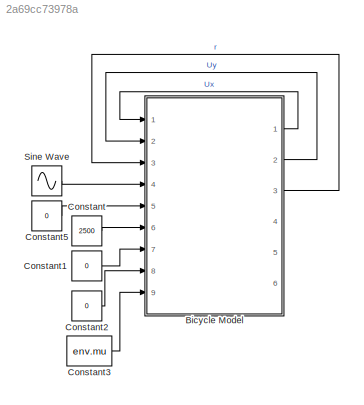
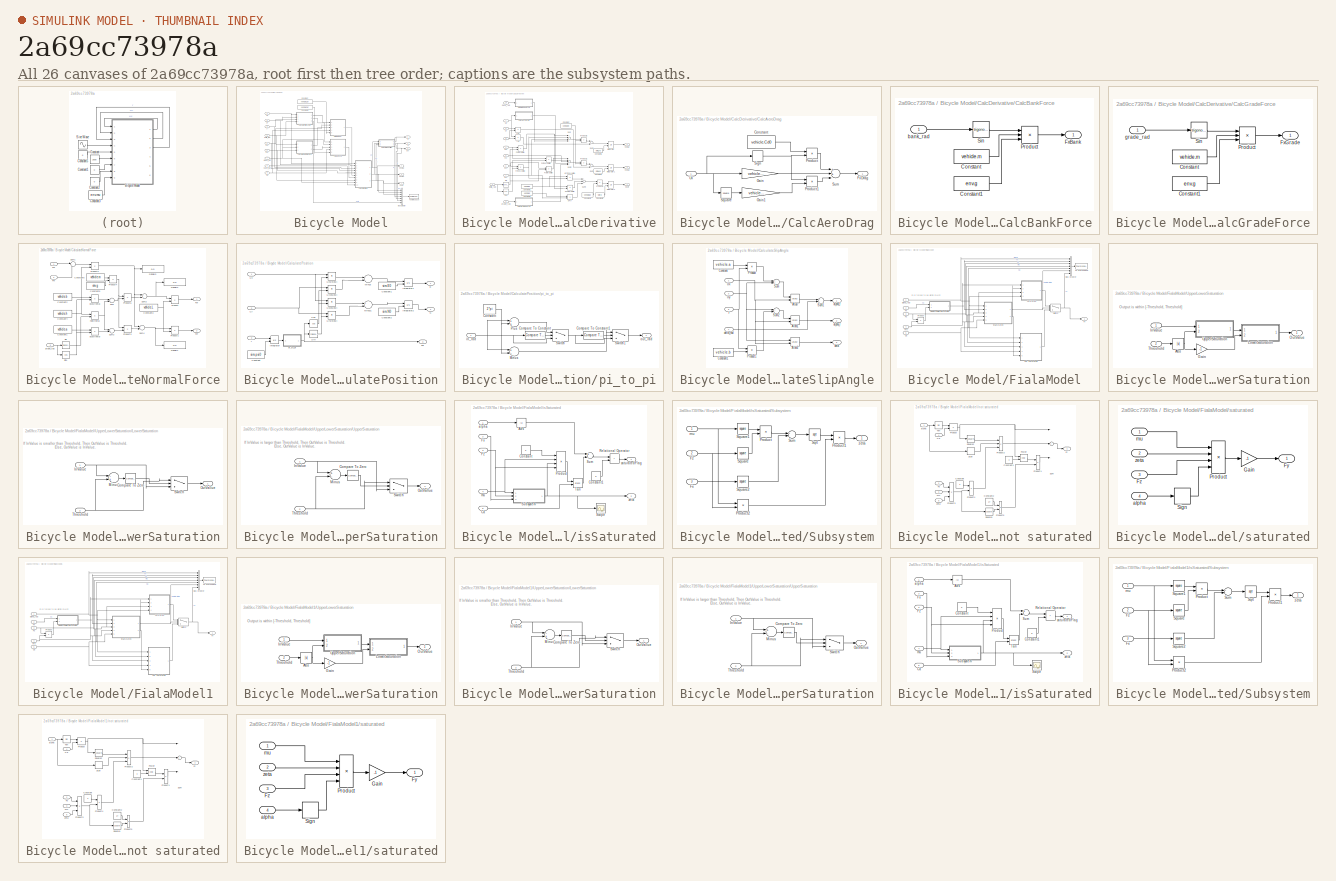
[diagram: thumbnail index - all 26 canvases of the model, root first then tree order]
MODEL slx_2a69cc73978a
KIND model
CONFIG AbsTol = auto
CONFIG EnableMultiTasking = off
CONFIG FixedStep = 0.001
CONFIG MaxStep = auto
CONFIG MinStep = auto
CONFIG RelTol = 1e-3
CONFIG SampleTimeConstraint = Unconstrained
CONFIG Solver = ode1
CONFIG SolverName = ode1
CONFIG StartTime = 0.0
CONFIG StopTime = 10.0
BLOCK [SubSystem] Bicycle Model
  Ports = [9, 6]
  RequestExecContextInheritance = off
BLOCK [BusCreator] Bicycle Model/Bus Creator
  DisplayOption = bar
  InheritFromInputs = on
  Inputs = 7
  Ports = [7, 1]
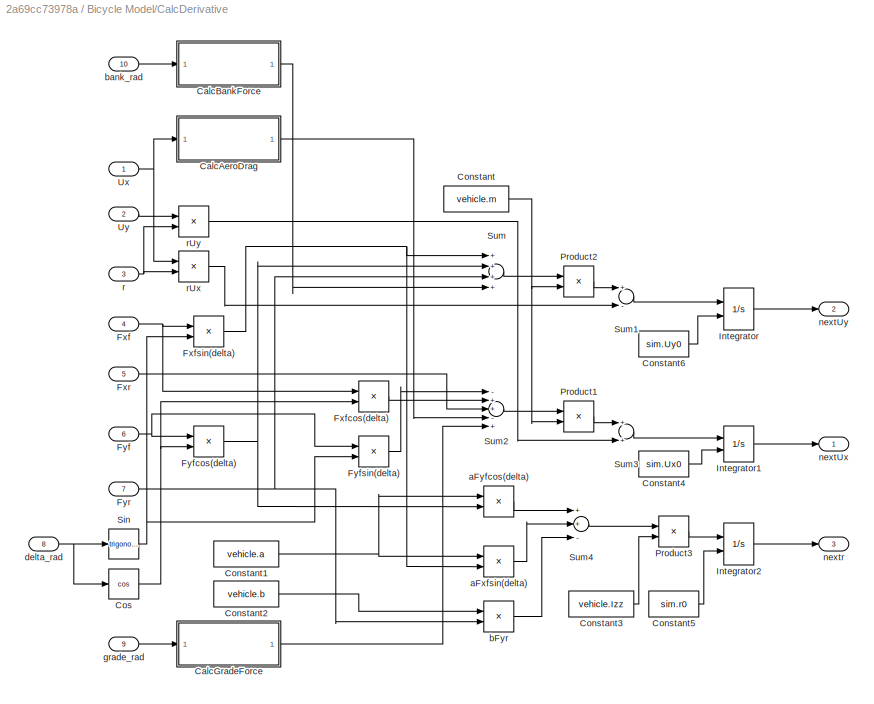
BLOCK [SubSystem] Bicycle Model/CalcDerivative
  Ports = [10, 3]
  RequestExecContextInheritance = off
BLOCK [SubSystem] Bicycle Model/CalcDerivative/CalcAeroDrag
  Ports = [1, 1]
  RequestExecContextInheritance = off
BLOCK [Constant] Bicycle Model/CalcDerivative/CalcAeroDrag/Constant
  Value = vehicle.Cd0
BLOCK [Outport] Bicycle Model/CalcDerivative/CalcAeroDrag/FxDrag
  IconDisplay = Port number
BLOCK [Gain] Bicycle Model/CalcDerivative/CalcAeroDrag/Gain
  Gain = vehicle.Cd1
  OutDataTypeStr = Inherit: Inherit via internal rule
  ParamDataTypeStr = Inherit: Inherit via internal rule
  SaturateOnIntegerOverflow = off
BLOCK [Gain] Bicycle Model/CalcDerivative/CalcAeroDrag/Gain1
  Gain = vehicle.Cd2
  OutDataTypeStr = Inherit: Inherit via internal rule
  ParamDataTypeStr = Inherit: Inherit via internal rule
  SaturateOnIntegerOverflow = off
BLOCK [Product] Bicycle Model/CalcDerivative/CalcAeroDrag/Product
  InputSameDT = off
  OutDataTypeStr = Inherit: Inherit via internal rule
  Ports = [2, 1]
  RndMeth = Floor
  SaturateOnIntegerOverflow = off
BLOCK [Product] Bicycle Model/CalcDerivative/CalcAeroDrag/Product1
  InputSameDT = off
  OutDataTypeStr = Inherit: Inherit via internal rule
  Ports = [2, 1]
  RndMeth = Floor
  SaturateOnIntegerOverflow = off
BLOCK [Signum] Bicycle Model/CalcDerivative/CalcAeroDrag/Sign
BLOCK [Math] Bicycle Model/CalcDerivative/CalcAeroDrag/Square
  Operator = square
  Ports = [1, 1]
BLOCK [Sum] Bicycle Model/CalcDerivative/CalcAeroDrag/Sum
  InputSameDT = off
  Inputs = 3
  OutDataTypeStr = Inherit: Inherit via internal rule
  Ports = [3, 1]
  SaturateOnIntegerOverflow = off
BLOCK [Inport] Bicycle Model/CalcDerivative/CalcAeroDrag/Ux
  IconDisplay = Port number
BLOCK [SubSystem] Bicycle Model/CalcDerivative/CalcBankForce
  Ports = [1, 1]
  RequestExecContextInheritance = off
BLOCK [Constant] Bicycle Model/CalcDerivative/CalcBankForce/Constant
  Value = vehicle.m
BLOCK [Constant] Bicycle Model/CalcDerivative/CalcBankForce/Constant1
  Value = env.g
BLOCK [Outport] Bicycle Model/CalcDerivative/CalcBankForce/FxBank
  IconDisplay = Port number
BLOCK [Product] Bicycle Model/CalcDerivative/CalcBankForce/Product
  InputSameDT = off
  Inputs = 3
  OutDataTypeStr = Inherit: Inherit via internal rule
  Ports = [3, 1]
  RndMeth = Floor
  SaturateOnIntegerOverflow = off
BLOCK [Trigonometry] Bicycle Model/CalcDerivative/CalcBankForce/Sin
  Ports = [1, 1]
BLOCK [Inport] Bicycle Model/CalcDerivative/CalcBankForce/bank_rad
  IconDisplay = Port number
BLOCK [SubSystem] Bicycle Model/CalcDerivative/CalcGradeForce
  Ports = [1, 1]
  RequestExecContextInheritance = off
BLOCK [Constant] Bicycle Model/CalcDerivative/CalcGradeForce/Constant
  Value = vehicle.m
BLOCK [Constant] Bicycle Model/CalcDerivative/CalcGradeForce/Constant1
  Value = env.g
BLOCK [Outport] Bicycle Model/CalcDerivative/CalcGradeForce/FxGrade
  IconDisplay = Port number
BLOCK [Product] Bicycle Model/CalcDerivative/CalcGradeForce/Product
  InputSameDT = off
  Inputs = 3
  OutDataTypeStr = Inherit: Inherit via internal rule
  Ports = [3, 1]
  RndMeth = Floor
  SaturateOnIntegerOverflow = off
BLOCK [Trigonometry] Bicycle Model/CalcDerivative/CalcGradeForce/Sin
  Ports = [1, 1]
BLOCK [Inport] Bicycle Model/CalcDerivative/CalcGradeForce/grade_rad
  IconDisplay = Port number
BLOCK [Constant] Bicycle Model/CalcDerivative/Constant
  Value = vehicle.m
BLOCK [Constant] Bicycle Model/CalcDerivative/Constant1
  Value = vehicle.a
BLOCK [Constant] Bicycle Model/CalcDerivative/Constant2
  Value = vehicle.b
BLOCK [Constant] Bicycle Model/CalcDerivative/Constant3
  Value = vehicle.Izz
BLOCK [Constant] Bicycle Model/CalcDerivative/Constant4
  Value = sim.Ux0
BLOCK [Constant] Bicycle Model/CalcDerivative/Constant5
  Value = sim.r0
BLOCK [Constant] Bicycle Model/CalcDerivative/Constant6
  Value = sim.Uy0
BLOCK [Trigonometry] Bicycle Model/CalcDerivative/Cos
  Operator = cos
  Ports = [1, 1]
BLOCK [Inport] Bicycle Model/CalcDerivative/Fxf
  IconDisplay = Port number
  Port = 4
BLOCK [Product] Bicycle Model/CalcDerivative/Fxfcos(delta)
  InputSameDT = off
  OutDataTypeStr = Inherit: Inherit via internal rule
  Ports = [2, 1]
  RndMeth = Floor
  SaturateOnIntegerOverflow = off
BLOCK [Product] Bicycle Model/CalcDerivative/Fxfsin(delta)
  InputSameDT = off
  OutDataTypeStr = Inherit: Inherit via internal rule
  Ports = [2, 1]
  RndMeth = Floor
  SaturateOnIntegerOverflow = off
BLOCK [Inport] Bicycle Model/CalcDerivative/Fxr
  IconDisplay = Port number
  Port = 5
BLOCK [Inport] Bicycle Model/CalcDerivative/Fyf
  IconDisplay = Port number
  Port = 6
BLOCK [Product] Bicycle Model/CalcDerivative/Fyfcos(delta)
  InputSameDT = off
  OutDataTypeStr = Inherit: Inherit via internal rule
  Ports = [2, 1]
  RndMeth = Floor
  SaturateOnIntegerOverflow = off
BLOCK [Product] Bicycle Model/CalcDerivative/Fyfsin(delta)
  InputSameDT = off
  OutDataTypeStr = Inherit: Inherit via internal rule
  Ports = [2, 1]
  RndMeth = Floor
  SaturateOnIntegerOverflow = off
BLOCK [Inport] Bicycle Model/CalcDerivative/Fyr
  IconDisplay = Port number
  Port = 7
BLOCK [Integrator] Bicycle Model/CalcDerivative/Integrator
  InitialConditionSource = external
  Ports = [2, 1]
BLOCK [Integrator] Bicycle Model/CalcDerivative/Integrator1
  InitialConditionSource = external
  Ports = [2, 1]
BLOCK [Integrator] Bicycle Model/CalcDerivative/Integrator2
  InitialCondition = sim.r0
  InitialConditionSource = external
  Ports = [2, 1]
BLOCK [Product] Bicycle Model/CalcDerivative/Product1
  InputSameDT = off
  Inputs = */
  OutDataTypeStr = Inherit: Inherit via internal rule
  Ports = [2, 1]
  RndMeth = Floor
  SaturateOnIntegerOverflow = off
BLOCK [Product] Bicycle Model/CalcDerivative/Product2
  InputSameDT = off
  Inputs = */
  OutDataTypeStr = Inherit: Inherit via internal rule
  Ports = [2, 1]
  RndMeth = Floor
  SaturateOnIntegerOverflow = off
BLOCK [Product] Bicycle Model/CalcDerivative/Product3
  InputSameDT = off
  Inputs = */
  OutDataTypeStr = Inherit: Inherit via internal rule
  Ports = [2, 1]
  RndMeth = Floor
  SaturateOnIntegerOverflow = off
BLOCK [Trigonometry] Bicycle Model/CalcDerivative/Sin
  Ports = [1, 1]
BLOCK [Sum] Bicycle Model/CalcDerivative/Sum
  InputSameDT = off
  Inputs = ++++
  OutDataTypeStr = Inherit: Inherit via internal rule
  Ports = [4, 1]
  SaturateOnIntegerOverflow = off
BLOCK [Sum] Bicycle Model/CalcDerivative/Sum1
  InputSameDT = off
  Inputs = +-
  OutDataTypeStr = Inherit: Inherit via internal rule
  Ports = [2, 1]
  SaturateOnIntegerOverflow = off
BLOCK [Sum] Bicycle Model/CalcDerivative/Sum2
  InputSameDT = off
  Inputs = -++-+
  OutDataTypeStr = Inherit: Inherit via internal rule
  Ports = [5, 1]
  SaturateOnIntegerOverflow = off
BLOCK [Sum] Bicycle Model/CalcDerivative/Sum3
  InputSameDT = off
  OutDataTypeStr = Inherit: Inherit via internal rule
  Ports = [2, 1]
  SaturateOnIntegerOverflow = off
BLOCK [Sum] Bicycle Model/CalcDerivative/Sum4
  InputSameDT = off
  Inputs = ++-
  OutDataTypeStr = Inherit: Inherit via internal rule
  Ports = [3, 1]
  SaturateOnIntegerOverflow = off
BLOCK [Inport] Bicycle Model/CalcDerivative/Ux
  IconDisplay = Port number
BLOCK [Inport] Bicycle Model/CalcDerivative/Uy
  IconDisplay = Port number
  Port = 2
BLOCK [Product] Bicycle Model/CalcDerivative/aFxfsin(delta)
  InputSameDT = off
  OutDataTypeStr = Inherit: Inherit via internal rule
  Ports = [2, 1]
  RndMeth = Floor
  SaturateOnIntegerOverflow = off
BLOCK [Product] Bicycle Model/CalcDerivative/aFyfcos(delta)
  InputSameDT = off
  OutDataTypeStr = Inherit: Inherit via internal rule
  Ports = [2, 1]
  RndMeth = Floor
  SaturateOnIntegerOverflow = off
BLOCK [Product] Bicycle Model/CalcDerivative/bFyr
  InputSameDT = off
  OutDataTypeStr = Inherit: Inherit via internal rule
  Ports = [2, 1]
  RndMeth = Floor
  SaturateOnIntegerOverflow = off
BLOCK [Inport] Bicycle Model/CalcDerivative/bank_rad
  IconDisplay = Port number
  Port = 10
BLOCK [Inport] Bicycle Model/CalcDerivative/delta_rad
  IconDisplay = Port number
  Port = 8
BLOCK [Inport] Bicycle Model/CalcDerivative/grade_rad
  IconDisplay = Port number
  Port = 9
BLOCK [Outport] Bicycle Model/CalcDerivative/nextUx 
  IconDisplay = Port number
BLOCK [Outport] Bicycle Model/CalcDerivative/nextUy
  IconDisplay = Port number
  Port = 2
BLOCK [Outport] Bicycle Model/CalcDerivative/nextr
  IconDisplay = Port number
  Port = 3
BLOCK [Inport] Bicycle Model/CalcDerivative/r
  IconDisplay = Port number
  Port = 3
BLOCK [Product] Bicycle Model/CalcDerivative/rUx
  InputSameDT = off
  OutDataTypeStr = Inherit: Inherit via internal rule
  Ports = [2, 1]
  RndMeth = Floor
  SaturateOnIntegerOverflow = off
BLOCK [Product] Bicycle Model/CalcDerivative/rUy
  InputSameDT = off
  OutDataTypeStr = Inherit: Inherit via internal rule
  Ports = [2, 1]
  RndMeth = Floor
  SaturateOnIntegerOverflow = off
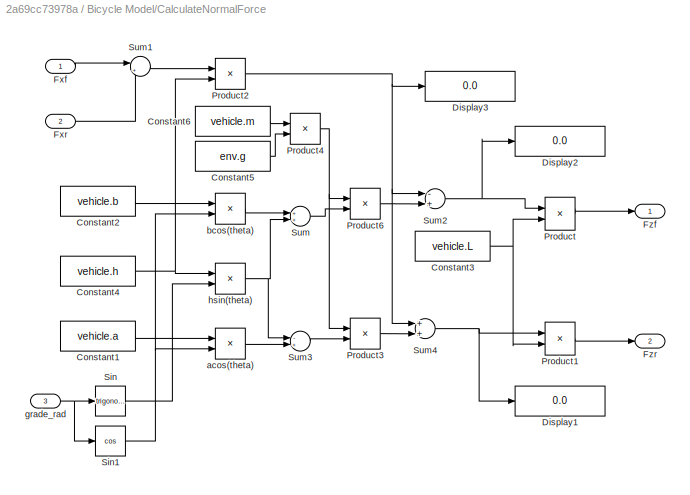
BLOCK [SubSystem] Bicycle Model/CalculateNormalForce
  Ports = [3, 2]
  RequestExecContextInheritance = off
BLOCK [Constant] Bicycle Model/CalculateNormalForce/Constant1
  Value = vehicle.a
BLOCK [Constant] Bicycle Model/CalculateNormalForce/Constant2
  Value = vehicle.b
BLOCK [Constant] Bicycle Model/CalculateNormalForce/Constant3
  Value = vehicle.L
BLOCK [Constant] Bicycle Model/CalculateNormalForce/Constant4
  Value = vehicle.h
BLOCK [Constant] Bicycle Model/CalculateNormalForce/Constant5
  Value = env.g
BLOCK [Constant] Bicycle Model/CalculateNormalForce/Constant6
  Value = vehicle.m
BLOCK [Display] Bicycle Model/CalculateNormalForce/Display1
  Decimation = 1
  Ports = [1]
BLOCK [Display] Bicycle Model/CalculateNormalForce/Display2
  Decimation = 1
  Ports = [1]
BLOCK [Display] Bicycle Model/CalculateNormalForce/Display3
  Decimation = 1
  Ports = [1]
BLOCK [Inport] Bicycle Model/CalculateNormalForce/Fxf
  IconDisplay = Port number
BLOCK [Inport] Bicycle Model/CalculateNormalForce/Fxr
  IconDisplay = Port number
  Port = 2
BLOCK [Outport] Bicycle Model/CalculateNormalForce/Fzf
  IconDisplay = Port number
BLOCK [Outport] Bicycle Model/CalculateNormalForce/Fzr
  IconDisplay = Port number
  Port = 2
BLOCK [Product] Bicycle Model/CalculateNormalForce/Product
  InputSameDT = off
  Inputs = */
  OutDataTypeStr = Inherit: Inherit via internal rule
  Ports = [2, 1]
  RndMeth = Floor
  SaturateOnIntegerOverflow = off
BLOCK [Product] Bicycle Model/CalculateNormalForce/Product1
  InputSameDT = off
  Inputs = */
  OutDataTypeStr = Inherit: Inherit via internal rule
  Ports = [2, 1]
  RndMeth = Floor
  SaturateOnIntegerOverflow = off
BLOCK [Product] Bicycle Model/CalculateNormalForce/Product2
  InputSameDT = off
  OutDataTypeStr = Inherit: Inherit via internal rule
  Ports = [2, 1]
  RndMeth = Floor
  SaturateOnIntegerOverflow = off
BLOCK [Product] Bicycle Model/CalculateNormalForce/Product3
  InputSameDT = off
  OutDataTypeStr = Inherit: Inherit via internal rule
  Ports = [2, 1]
  RndMeth = Floor
  SaturateOnIntegerOverflow = off
BLOCK [Product] Bicycle Model/CalculateNormalForce/Product4
  InputSameDT = off
  OutDataTypeStr = Inherit: Inherit via internal rule
  Ports = [2, 1]
  RndMeth = Floor
  SaturateOnIntegerOverflow = off
BLOCK [Product] Bicycle Model/CalculateNormalForce/Product6
  InputSameDT = off
  OutDataTypeStr = Inherit: Inherit via internal rule
  Ports = [2, 1]
  RndMeth = Floor
  SaturateOnIntegerOverflow = off
BLOCK [Trigonometry] Bicycle Model/CalculateNormalForce/Sin
  Ports = [1, 1]
BLOCK [Trigonometry] Bicycle Model/CalculateNormalForce/Sin1
  Operator = cos
  Ports = [1, 1]
BLOCK [Sum] Bicycle Model/CalculateNormalForce/Sum
  InputSameDT = off
  OutDataTypeStr = Inherit: Inherit via internal rule
  Ports = [2, 1]
  SaturateOnIntegerOverflow = off
BLOCK [Sum] Bicycle Model/CalculateNormalForce/Sum1
  IconShape = round
  InputSameDT = off
  Inputs = |++
  OutDataTypeStr = Inherit: Inherit via internal rule
  Ports = [2, 1]
  SaturateOnIntegerOverflow = off
BLOCK [Sum] Bicycle Model/CalculateNormalForce/Sum2
  InputSameDT = off
  Inputs = -+
  OutDataTypeStr = Inherit: Inherit via internal rule
  Ports = [2, 1]
  SaturateOnIntegerOverflow = off
BLOCK [Sum] Bicycle Model/CalculateNormalForce/Sum3
  InputSameDT = off
  Inputs = -+
  OutDataTypeStr = Inherit: Inherit via internal rule
  Ports = [2, 1]
  SaturateOnIntegerOverflow = off
BLOCK [Sum] Bicycle Model/CalculateNormalForce/Sum4
  InputSameDT = off
  OutDataTypeStr = Inherit: Inherit via internal rule
  Ports = [2, 1]
  SaturateOnIntegerOverflow = off
BLOCK [Product] Bicycle Model/CalculateNormalForce/acos(theta)
  InputSameDT = off
  OutDataTypeStr = Inherit: Inherit via internal rule
  Ports = [2, 1]
  RndMeth = Floor
  SaturateOnIntegerOverflow = off
BLOCK [Product] Bicycle Model/CalculateNormalForce/bcos(theta)
  InputSameDT = off
  OutDataTypeStr = Inherit: Inherit via internal rule
  Ports = [2, 1]
  RndMeth = Floor
  SaturateOnIntegerOverflow = off
BLOCK [Inport] Bicycle Model/CalculateNormalForce/grade_rad
  IconDisplay = Port number
  Port = 3
BLOCK [Product] Bicycle Model/CalculateNormalForce/hsin(theta)
  InputSameDT = off
  OutDataTypeStr = Inherit: Inherit via internal rule
  Ports = [2, 1]
  RndMeth = Floor
  SaturateOnIntegerOverflow = off
BLOCK [SubSystem] Bicycle Model/CalculatePosition
  Ports = [3, 3]
  RequestExecContextInheritance = off
BLOCK [Constant] Bicycle Model/CalculatePosition/Constant
  Value = sim.psi0
BLOCK [Constant] Bicycle Model/CalculatePosition/Constant1
  Value = sim.E0
BLOCK [Constant] Bicycle Model/CalculatePosition/Constant2
  Value = sim.N0
BLOCK [Trigonometry] Bicycle Model/CalculatePosition/Cos
  Operator = cos
  Ports = [1, 1]
BLOCK [Outport] Bicycle Model/CalculatePosition/E
  IconDisplay = Port number
BLOCK [Integrator] Bicycle Model/CalculatePosition/Integrator
  InitialConditionSource = external
  Ports = [2, 1]
BLOCK [Integrator] Bicycle Model/CalculatePosition/Integrator1
  InitialConditionSource = external
  Ports = [2, 1]
BLOCK [Integrator] Bicycle Model/CalculatePosition/Integrator2
  InitialConditionSource = external
  Ports = [2, 1]
BLOCK [Sum] Bicycle Model/CalculatePosition/Minus
  InputSameDT = off
  Inputs = --
  OutDataTypeStr = Inherit: Inherit via internal rule
  Ports = [2, 1]
  SaturateOnIntegerOverflow = off
BLOCK [Sum] Bicycle Model/CalculatePosition/Minus1
  InputSameDT = off
  Inputs = +-
  OutDataTypeStr = Inherit: Inherit via internal rule
  Ports = [2, 1]
  SaturateOnIntegerOverflow = off
BLOCK [Outport] Bicycle Model/CalculatePosition/N
  IconDisplay = Port number
  Port = 2
BLOCK [Trigonometry] Bicycle Model/CalculatePosition/Sin
  Ports = [1, 1]
BLOCK [Inport] Bicycle Model/CalculatePosition/Ux
  IconDisplay = Port number
BLOCK [Product] Bicycle Model/CalculatePosition/Uxcos(psi)
  InputSameDT = off
  OutDataTypeStr = Inherit: Inherit via internal rule
  Ports = [2, 1]
  RndMeth = Floor
  SaturateOnIntegerOverflow = off
BLOCK [Product] Bicycle Model/CalculatePosition/Uxsin(psi)
  InputSameDT = off
  OutDataTypeStr = Inherit: Inherit via internal rule
  Ports = [2, 1]
  RndMeth = Floor
  SaturateOnIntegerOverflow = off
BLOCK [Inport] Bicycle Model/CalculatePosition/Uy
  IconDisplay = Port number
  Port = 2
BLOCK [Product] Bicycle Model/CalculatePosition/Uycos(psi)
  InputSameDT = off
  OutDataTypeStr = Inherit: Inherit via internal rule
  Ports = [2, 1]
  RndMeth = Floor
  SaturateOnIntegerOverflow = off
BLOCK [Product] Bicycle Model/CalculatePosition/Uysin(psi)
  InputSameDT = off
  OutDataTypeStr = Inherit: Inherit via internal rule
  Ports = [2, 1]
  RndMeth = Floor
  SaturateOnIntegerOverflow = off
BLOCK [SubSystem] Bicycle Model/CalculatePosition/pi_to_pi
  Ports = [1, 1]
  RequestExecContextInheritance = off
BLOCK [Reference] Bicycle Model/CalculatePosition/pi_to_pi/Compare To Constant  REF=simulink/Logic and Bit
Operations/Compare
To Constant
  Ports = [1, 1]
  SourceBlock = simulink/Logic and Bit\nOperations/Compare\nTo Constant
  SourceProductBaseCode = SL
  SourceProductName = Simulink
  SourceType = Compare To Constant
BLOCK [Reference] Bicycle Model/CalculatePosition/pi_to_pi/Compare To Constant1  REF=simulink/Logic and Bit
Operations/Compare
To Constant
  Ports = [1, 1]
  SourceBlock = simulink/Logic and Bit\nOperations/Compare\nTo Constant
  SourceProductBaseCode = SL
  SourceProductName = Simulink
  SourceType = Compare To Constant
BLOCK [Constant] Bicycle Model/CalculatePosition/pi_to_pi/Constant
  Value = 2*pi
BLOCK [Sum] Bicycle Model/CalculatePosition/pi_to_pi/Minus
  InputSameDT = off
  Inputs = +-
  OutDataTypeStr = Inherit: Inherit via internal rule
  Ports = [2, 1]
  SaturateOnIntegerOverflow = off
BLOCK [Sum] Bicycle Model/CalculatePosition/pi_to_pi/Plus
  InputSameDT = off
  OutDataTypeStr = Inherit: Inherit via internal rule
  Ports = [2, 1]
  SaturateOnIntegerOverflow = off
BLOCK [Switch] Bicycle Model/CalculatePosition/pi_to_pi/Switch
  Criteria = u2 > Threshold
  InputSameDT = off
  SaturateOnIntegerOverflow = off
BLOCK [Switch] Bicycle Model/CalculatePosition/pi_to_pi/Switch1
  Criteria = u2 > Threshold
  InputSameDT = off
  SaturateOnIntegerOverflow = off
BLOCK [Inport] Bicycle Model/CalculatePosition/pi_to_pi/in_rad
  IconDisplay = Port number
BLOCK [Outport] Bicycle Model/CalculatePosition/pi_to_pi/out_rad
  IconDisplay = Port number
BLOCK [Outport] Bicycle Model/CalculatePosition/psi
  IconDisplay = Port number
  Port = 3
BLOCK [Inport] Bicycle Model/CalculatePosition/r
  IconDisplay = Port number
  Port = 3
BLOCK [SubSystem] Bicycle Model/CalculateSlipAngle
  Ports = [4, 3]
  RequestExecContextInheritance = off
BLOCK [Trigonometry] Bicycle Model/CalculateSlipAngle/Atan
  Operator = atan2
  Ports = [2, 1]
BLOCK [Trigonometry] Bicycle Model/CalculateSlipAngle/Atan1
  Operator = atan2
  Ports = [2, 1]
BLOCK [Trigonometry] Bicycle Model/CalculateSlipAngle/Atan2
  Operator = atan2
  Ports = [2, 1]
BLOCK [Constant] Bicycle Model/CalculateSlipAngle/Constant
  Value = vehicle.a
BLOCK [Constant] Bicycle Model/CalculateSlipAngle/Constant1
  Value = vehicle.b
BLOCK [Product] Bicycle Model/CalculateSlipAngle/Product
  InputSameDT = off
  OutDataTypeStr = Inherit: Inherit via internal rule
  Ports = [2, 1]
  RndMeth = Floor
  SaturateOnIntegerOverflow = off
BLOCK [Product] Bicycle Model/CalculateSlipAngle/Product1
  InputSameDT = off
  OutDataTypeStr = Inherit: Inherit via internal rule
  Ports = [2, 1]
  RndMeth = Floor
  SaturateOnIntegerOverflow = off
BLOCK [Sum] Bicycle Model/CalculateSlipAngle/Sum
  InputSameDT = off
  OutDataTypeStr = Inherit: Inherit via internal rule
  Ports = [2, 1]
  SaturateOnIntegerOverflow = off
BLOCK [Sum] Bicycle Model/CalculateSlipAngle/Sum1
  InputSameDT = off
  Inputs = +-
  OutDataTypeStr = Inherit: Inherit via internal rule
  Ports = [2, 1]
  SaturateOnIntegerOverflow = off
BLOCK [Sum] Bicycle Model/CalculateSlipAngle/Sum2
  InputSameDT = off
  Inputs = +-
  OutDataTypeStr = Inherit: Inherit via internal rule
  Ports = [2, 1]
  SaturateOnIntegerOverflow = off
BLOCK [Inport] Bicycle Model/CalculateSlipAngle/Ux
  IconDisplay = Port number
BLOCK [Inport] Bicycle Model/CalculateSlipAngle/Uy
  IconDisplay = Port number
  Port = 2
BLOCK [Outport] Bicycle Model/CalculateSlipAngle/alpha_f
  IconDisplay = Port number
BLOCK [Outport] Bicycle Model/CalculateSlipAngle/alpha_r
  IconDisplay = Port number
  Port = 2
BLOCK [Outport] Bicycle Model/CalculateSlipAngle/beta
  IconDisplay = Port number
  Port = 3
BLOCK [Inport] Bicycle Model/CalculateSlipAngle/delta_rad
  IconDisplay = Port number
  Port = 4
BLOCK [Inport] Bicycle Model/CalculateSlipAngle/r
  IconDisplay = Port number
  Port = 3
BLOCK [Constant] Bicycle Model/Constant
  Value = vehicle.Caf
BLOCK [Constant] Bicycle Model/Constant1
  Value = vehicle.Car
BLOCK [Outport] Bicycle Model/E
  IconDisplay = Port number
  Port = 4
BLOCK [SubSystem] Bicycle Model/FialaModel
  Ports = [5, 1]
  RequestExecContextInheritance = off
BLOCK [BusCreator] Bicycle Model/FialaModel/Bus Creator
  DisplayOption = bar
  InheritFromInputs = on
  Inputs = 7
  Ports = [7, 1]
BLOCK [Inport] Bicycle Model/FialaModel/Ca
  IconDisplay = Port number
  Port = 5
BLOCK [Inport] Bicycle Model/FialaModel/Fx
  IconDisplay = Port number
  Port = 2
BLOCK [Outport] Bicycle Model/FialaModel/Fy
  IconDisplay = Port number
BLOCK [Inport] Bicycle Model/FialaModel/Fz
  IconDisplay = Port number
  Port = 3
BLOCK [Product] Bicycle Model/FialaModel/Product
  InputSameDT = off
  OutDataTypeStr = Inherit: Inherit via internal rule
  Ports = [2, 1]
  RndMeth = Floor
  SaturateOnIntegerOverflow = off
BLOCK [Switch] Bicycle Model/FialaModel/Switch
  Criteria = u2 > Threshold
  InputSameDT = off
  SaturateOnIntegerOverflow = off
BLOCK [ToWorkspace] Bicycle Model/FialaModel/To Workspace
  FixptAsFi = on
  MaxDataPoints = inf
  Ports = [1]
  SampleTime = -1
  Save2DSignal = 3-D array (concatenate along third dimension)
  SaveFormat = Timeseries
  VariableName = frontTire
BLOCK [SubSystem] Bicycle Model/FialaModel/UpperLowerSaturation
  Ports = [2, 1]
  RequestExecContextInheritance = off
BLOCK [Abs] Bicycle Model/FialaModel/UpperLowerSaturation/Abs
  SaturateOnIntegerOverflow = off
BLOCK [Gain] Bicycle Model/FialaModel/UpperLowerSaturation/Gain
  Gain = -1
  OutDataTypeStr = Inherit: Inherit via internal rule
  ParamDataTypeStr = Inherit: Inherit via internal rule
  SaturateOnIntegerOverflow = off
BLOCK [Inport] Bicycle Model/FialaModel/UpperLowerSaturation/InValue
  IconDisplay = Port number
BLOCK [SubSystem] Bicycle Model/FialaModel/UpperLowerSaturation/LowerSaturation
  Ports = [2, 1]
  RequestExecContextInheritance = off
BLOCK [Reference] Bicycle Model/FialaModel/UpperLowerSaturation/LowerSaturation/Compare To Zero  REF=simulink/Logic and Bit
Operations/Compare
To Zero
  Ports = [1, 1]
  SourceBlock = simulink/Logic and Bit\nOperations/Compare\nTo Zero
  SourceProductBaseCode = SL
  SourceProductName = Simulink
  SourceType = Compare To Zero
BLOCK [Inport] Bicycle Model/FialaModel/UpperLowerSaturation/LowerSaturation/InValue
  IconDisplay = Port number
BLOCK [Sum] Bicycle Model/FialaModel/UpperLowerSaturation/LowerSaturation/Minus
  InputSameDT = off
  Inputs = -+
  OutDataTypeStr = Inherit: Inherit via internal rule
  Ports = [2, 1]
  SaturateOnIntegerOverflow = off
BLOCK [Outport] Bicycle Model/FialaModel/UpperLowerSaturation/LowerSaturation/OutVallue
  IconDisplay = Port number
BLOCK [Switch] Bicycle Model/FialaModel/UpperLowerSaturation/LowerSaturation/Switch
  Criteria = u2 > Threshold
  InputSameDT = off
  SaturateOnIntegerOverflow = off
BLOCK [Inport] Bicycle Model/FialaModel/UpperLowerSaturation/LowerSaturation/Threshold
  IconDisplay = Port number
  Port = 2
BLOCK [Outport] Bicycle Model/FialaModel/UpperLowerSaturation/OutValue
  IconDisplay = Port number
BLOCK [Inport] Bicycle Model/FialaModel/UpperLowerSaturation/Threshold
  IconDisplay = Port number
  Port = 2
BLOCK [SubSystem] Bicycle Model/FialaModel/UpperLowerSaturation/UpperSaturation
  Ports = [2, 1]
  RequestExecContextInheritance = off
BLOCK [Reference] Bicycle Model/FialaModel/UpperLowerSaturation/UpperSaturation/Compare To Zero  REF=simulink/Logic and Bit
Operations/Compare
To Zero
  Ports = [1, 1]
  SourceBlock = simulink/Logic and Bit\nOperations/Compare\nTo Zero
  SourceProductBaseCode = SL
  SourceProductName = Simulink
  SourceType = Compare To Zero
BLOCK [Inport] Bicycle Model/FialaModel/UpperLowerSaturation/UpperSaturation/InValue
  IconDisplay = Port number
BLOCK [Sum] Bicycle Model/FialaModel/UpperLowerSaturation/UpperSaturation/Minus
  InputSameDT = off
  Inputs = +-
  OutDataTypeStr = Inherit: Inherit via internal rule
  Ports = [2, 1]
  SaturateOnIntegerOverflow = off
BLOCK [Outport] Bicycle Model/FialaModel/UpperLowerSaturation/UpperSaturation/OutVallue
  IconDisplay = Port number
BLOCK [Switch] Bicycle Model/FialaModel/UpperLowerSaturation/UpperSaturation/Switch
  Criteria = u2 > Threshold
  InputSameDT = off
  SaturateOnIntegerOverflow = off
BLOCK [Inport] Bicycle Model/FialaModel/UpperLowerSaturation/UpperSaturation/Threshold
  IconDisplay = Port number
  Port = 2
BLOCK [Inport] Bicycle Model/FialaModel/alpha_rad
  IconDisplay = Port number
BLOCK [SubSystem] Bicycle Model/FialaModel/isSaturated
  Ports = [5, 2]
  RequestExecContextInheritance = off
BLOCK [Abs] Bicycle Model/FialaModel/isSaturated/Abs
  SaturateOnIntegerOverflow = off
BLOCK [Inport] Bicycle Model/FialaModel/isSaturated/Ca
  IconDisplay = Port number
  Port = 5
BLOCK [Constant] Bicycle Model/FialaModel/isSaturated/Constant
  Value = 3
BLOCK [Constant] Bicycle Model/FialaModel/isSaturated/Constant1
  Value = 0
BLOCK [Inport] Bicycle Model/FialaModel/isSaturated/Fx
  IconDisplay = Port number
  Port = 2
BLOCK [Inport] Bicycle Model/FialaModel/isSaturated/Fz
  IconDisplay = Port number
  Port = 3
BLOCK [Product] Bicycle Model/FialaModel/isSaturated/Product
  InputSameDT = off
  Inputs = 4
  OutDataTypeStr = Inherit: Inherit via internal rule
  Ports = [4, 1]
  RndMeth = Floor
  SaturateOnIntegerOverflow = off
BLOCK [RelationalOperator] Bicycle Model/FialaModel/isSaturated/Relational Operator
  InputSameDT = off
  Operator = >
  OutDataTypeStr = boolean
  Ports = [2, 1]
  RndMeth = Simplest
BLOCK [Scope] Bicycle Model/FialaModel/isSaturated/Scope
  Floating = off
  NumInputPorts = 1
  Ports = [1]
  ScopeSpecificationString = Simulink.scopes.TimeScopeBlockCfg('CurrentConfiguration', extmgr.ConfigurationSet(extmgr.Configuration('Core','General UI',true),extmgr.Configuration('Core','Source UI',true),extmgr.Configuration('Sources','WiredSimulink',true,'DataLoggingVariableName','ScopeData2'),extmgr.Configuration('Visuals','Time Domain',true,'SerializedDisplays',{struct('MinYLimReal','0.33589','MaxYLimReal','0.53589','YLabe...<+1366ch>
BLOCK [SubSystem] Bicycle Model/FialaModel/isSaturated/Subsystem
  Ports = [3, 1]
  RequestExecContextInheritance = off
BLOCK [Inport] Bicycle Model/FialaModel/isSaturated/Subsystem/Fx
  IconDisplay = Port number
  Port = 3
BLOCK [Inport] Bicycle Model/FialaModel/isSaturated/Subsystem/Fz
  IconDisplay = Port number
  Port = 2
BLOCK [Product] Bicycle Model/FialaModel/isSaturated/Subsystem/Product
  InputSameDT = off
  OutDataTypeStr = Inherit: Inherit via internal rule
  Ports = [2, 1]
  RndMeth = Floor
  SaturateOnIntegerOverflow = off
BLOCK [Product] Bicycle Model/FialaModel/isSaturated/Subsystem/Product1
  InputSameDT = off
  Inputs = */
  OutDataTypeStr = Inherit: Inherit via internal rule
  Ports = [2, 1]
  RndMeth = Floor
  SaturateOnIntegerOverflow = off
BLOCK [Product] Bicycle Model/FialaModel/isSaturated/Subsystem/Product2
  InputSameDT = off
  OutDataTypeStr = Inherit: Inherit via internal rule
  Ports = [2, 1]
  RndMeth = Floor
  SaturateOnIntegerOverflow = off
BLOCK [Sqrt] Bicycle Model/FialaModel/isSaturated/Subsystem/Sqrt
BLOCK [Math] Bicycle Model/FialaModel/isSaturated/Subsystem/Square
  Operator = square
  Ports = [1, 1]
BLOCK [Math] Bicycle Model/FialaModel/isSaturated/Subsystem/Square1
  Operator = square
  Ports = [1, 1]
BLOCK [Math] Bicycle Model/FialaModel/isSaturated/Subsystem/Square2
  Operator = square
  Ports = [1, 1]
BLOCK [Sum] Bicycle Model/FialaModel/isSaturated/Subsystem/Sum
  InputSameDT = off
  Inputs = +-
  OutDataTypeStr = Inherit: Inherit via internal rule
  Ports = [2, 1]
  SaturateOnIntegerOverflow = off
BLOCK [Inport] Bicycle Model/FialaModel/isSaturated/Subsystem/mu
  IconDisplay = Port number
BLOCK [Outport] Bicycle Model/FialaModel/isSaturated/Subsystem/zeta
  IconDisplay = Port number
BLOCK [Sum] Bicycle Model/FialaModel/isSaturated/Sum
  InputSameDT = off
  Inputs = +-
  OutDataTypeStr = Inherit: Inherit via internal rule
  Ports = [2, 1]
  SaturateOnIntegerOverflow = off
BLOCK [Trigonometry] Bicycle Model/FialaModel/isSaturated/Tan
  Operator = atan2
  Ports = [2, 1]
BLOCK [Inport] Bicycle Model/FialaModel/isSaturated/alpha
  IconDisplay = Port number
BLOCK [Inport] Bicycle Model/FialaModel/isSaturated/mu
  IconDisplay = Port number
  Port = 4
BLOCK [Outport] Bicycle Model/FialaModel/isSaturated/saturatedFlag
  IconDisplay = Port number
BLOCK [Outport] Bicycle Model/FialaModel/isSaturated/zeta
  IconDisplay = Port number
  Port = 2
BLOCK [Inport] Bicycle Model/FialaModel/mu
  IconDisplay = Port number
  Port = 4
BLOCK [SubSystem] Bicycle Model/FialaModel/not saturated
  Ports = [5, 1]
  RequestExecContextInheritance = off
BLOCK [Inport] Bicycle Model/FialaModel/not saturated/Ca
  IconDisplay = Port number
  Port = 4
BLOCK [Constant] Bicycle Model/FialaModel/not saturated/Constant
  Value = 3
BLOCK [Constant] Bicycle Model/FialaModel/not saturated/Constant1
  Value = 3
BLOCK [Constant] Bicycle Model/FialaModel/not saturated/Constant2
  Value = 27
BLOCK [Outport] Bicycle Model/FialaModel/not saturated/Fy
  IconDisplay = Port number
BLOCK [Inport] Bicycle Model/FialaModel/not saturated/Fz
  IconDisplay = Port number
  Port = 2
BLOCK [Math] Bicycle Model/FialaModel/not saturated/Power
  Operator = pow
  Ports = [2, 1]
BLOCK [Product] Bicycle Model/FialaModel/not saturated/Product
  InputSameDT = off
  OutDataTypeStr = Inherit: Inherit via internal rule
  Ports = [2, 1]
  RndMeth = Floor
  SaturateOnIntegerOverflow = off
BLOCK [Product] Bicycle Model/FialaModel/not saturated/Product1
  InputSameDT = off
  Inputs = */
  OutDataTypeStr = Inherit: Inherit via internal rule
  Ports = [2, 1]
  RndMeth = Floor
  SaturateOnIntegerOverflow = off
BLOCK [Product] Bicycle Model/FialaModel/not saturated/Product2
  InputSameDT = off
  Inputs = **/
  OutDataTypeStr = Inherit: Inherit via internal rule
  Ports = [3, 1]
  RndMeth = Floor
  SaturateOnIntegerOverflow = off
BLOCK [Product] Bicycle Model/FialaModel/not saturated/Product3
  InputSameDT = off
  Inputs = ***
  OutDataTypeStr = Inherit: Inherit via internal rule
  Ports = [3, 1]
  RndMeth = Floor
  SaturateOnIntegerOverflow = off
BLOCK [Product] Bicycle Model/FialaModel/not saturated/Product4
  InputSameDT = off
  OutDataTypeStr = Inherit: Inherit via internal rule
  Ports = [2, 1]
  RndMeth = Floor
  SaturateOnIntegerOverflow = off
BLOCK [Product] Bicycle Model/FialaModel/not saturated/Product5
  InputSameDT = off
  OutDataTypeStr = Inherit: Inherit via internal rule
  Ports = [2, 1]
  RndMeth = Floor
  SaturateOnIntegerOverflow = off
BLOCK [Signum] Bicycle Model/FialaModel/not saturated/Sign
BLOCK [Math] Bicycle Model/FialaModel/not saturated/Square1
  Operator = square
  Ports = [1, 1]
BLOCK [Math] Bicycle Model/FialaModel/not saturated/Square2
  Operator = square
  Ports = [1, 1]
BLOCK [Sum] Bicycle Model/FialaModel/not saturated/Sum
  InputSameDT = off
  Inputs = -+-
  OutDataTypeStr = Inherit: Inherit via internal rule
  Ports = [3, 1]
  SaturateOnIntegerOverflow = off
BLOCK [Trigonometry] Bicycle Model/FialaModel/not saturated/Tan
  Operator = tan
  Ports = [1, 1]
BLOCK [Inport] Bicycle Model/FialaModel/not saturated/alpha
  IconDisplay = Port number
BLOCK [Inport] Bicycle Model/FialaModel/not saturated/mu
  IconDisplay = Port number
  Port = 3
BLOCK [Inport] Bicycle Model/FialaModel/not saturated/zeta
  IconDisplay = Port number
  Port = 5
BLOCK [SubSystem] Bicycle Model/FialaModel/saturated
  Ports = [4, 1]
  RequestExecContextInheritance = off
BLOCK [Outport] Bicycle Model/FialaModel/saturated/Fy
  IconDisplay = Port number
BLOCK [Inport] Bicycle Model/FialaModel/saturated/Fz
  IconDisplay = Port number
  Port = 3
BLOCK [Gain] Bicycle Model/FialaModel/saturated/Gain
  Gain = -1
  OutDataTypeStr = Inherit: Inherit via internal rule
  ParamDataTypeStr = Inherit: Inherit via internal rule
  SaturateOnIntegerOverflow = off
BLOCK [Product] Bicycle Model/FialaModel/saturated/Product
  InputSameDT = off
  Inputs = 4
  OutDataTypeStr = Inherit: Inherit via internal rule
  Ports = [4, 1]
  RndMeth = Floor
  SaturateOnIntegerOverflow = off
BLOCK [Signum] Bicycle Model/FialaModel/saturated/Sign
BLOCK [Inport] Bicycle Model/FialaModel/saturated/alpha
  IconDisplay = Port number
  Port = 4
BLOCK [Inport] Bicycle Model/FialaModel/saturated/mu
  IconDisplay = Port number
BLOCK [Inport] Bicycle Model/FialaModel/saturated/zeta
  IconDisplay = Port number
  Port = 2
BLOCK [SubSystem] Bicycle Model/FialaModel1
  Ports = [5, 1]
  RequestExecContextInheritance = off
BLOCK [BusCreator] Bicycle Model/FialaModel1/Bus Creator
  DisplayOption = bar
  InheritFromInputs = on
  Inputs = 7
  Ports = [7, 1]
BLOCK [Inport] Bicycle Model/FialaModel1/Ca
  IconDisplay = Port number
  Port = 5
BLOCK [Inport] Bicycle Model/FialaModel1/Fx
  IconDisplay = Port number
  Port = 2
BLOCK [Outport] Bicycle Model/FialaModel1/Fy
  IconDisplay = Port number
BLOCK [Inport] Bicycle Model/FialaModel1/Fz
  IconDisplay = Port number
  Port = 3
BLOCK [Product] Bicycle Model/FialaModel1/Product
  InputSameDT = off
  OutDataTypeStr = Inherit: Inherit via internal rule
  Ports = [2, 1]
  RndMeth = Floor
  SaturateOnIntegerOverflow = off
BLOCK [Switch] Bicycle Model/FialaModel1/Switch
  Criteria = u2 > Threshold
  InputSameDT = off
  SaturateOnIntegerOverflow = off
BLOCK [ToWorkspace] Bicycle Model/FialaModel1/To Workspace
  FixptAsFi = on
  MaxDataPoints = inf
  Ports = [1]
  SampleTime = -1
  Save2DSignal = 3-D array (concatenate along third dimension)
  SaveFormat = Timeseries
  VariableName = rearTire
BLOCK [SubSystem] Bicycle Model/FialaModel1/UpperLowerSaturation
  Ports = [2, 1]
  RequestExecContextInheritance = off
BLOCK [Abs] Bicycle Model/FialaModel1/UpperLowerSaturation/Abs
  SaturateOnIntegerOverflow = off
BLOCK [Gain] Bicycle Model/FialaModel1/UpperLowerSaturation/Gain
  Gain = -1
  OutDataTypeStr = Inherit: Inherit via internal rule
  ParamDataTypeStr = Inherit: Inherit via internal rule
  SaturateOnIntegerOverflow = off
BLOCK [Inport] Bicycle Model/FialaModel1/UpperLowerSaturation/InValue
  IconDisplay = Port number
BLOCK [SubSystem] Bicycle Model/FialaModel1/UpperLowerSaturation/LowerSaturation
  Ports = [2, 1]
  RequestExecContextInheritance = off
BLOCK [Reference] Bicycle Model/FialaModel1/UpperLowerSaturation/LowerSaturation/Compare To Zero  REF=simulink/Logic and Bit
Operations/Compare
To Zero
  Ports = [1, 1]
  SourceBlock = simulink/Logic and Bit\nOperations/Compare\nTo Zero
  SourceProductBaseCode = SL
  SourceProductName = Simulink
  SourceType = Compare To Zero
BLOCK [Inport] Bicycle Model/FialaModel1/UpperLowerSaturation/LowerSaturation/InValue
  IconDisplay = Port number
BLOCK [Sum] Bicycle Model/FialaModel1/UpperLowerSaturation/LowerSaturation/Minus
  InputSameDT = off
  Inputs = -+
  OutDataTypeStr = Inherit: Inherit via internal rule
  Ports = [2, 1]
  SaturateOnIntegerOverflow = off
BLOCK [Outport] Bicycle Model/FialaModel1/UpperLowerSaturation/LowerSaturation/OutVallue
  IconDisplay = Port number
BLOCK [Switch] Bicycle Model/FialaModel1/UpperLowerSaturation/LowerSaturation/Switch
  Criteria = u2 > Threshold
  InputSameDT = off
  SaturateOnIntegerOverflow = off
BLOCK [Inport] Bicycle Model/FialaModel1/UpperLowerSaturation/LowerSaturation/Threshold
  IconDisplay = Port number
  Port = 2
BLOCK [Outport] Bicycle Model/FialaModel1/UpperLowerSaturation/OutValue
  IconDisplay = Port number
BLOCK [Inport] Bicycle Model/FialaModel1/UpperLowerSaturation/Threshold
  IconDisplay = Port number
  Port = 2
BLOCK [SubSystem] Bicycle Model/FialaModel1/UpperLowerSaturation/UpperSaturation
  Ports = [2, 1]
  RequestExecContextInheritance = off
BLOCK [Reference] Bicycle Model/FialaModel1/UpperLowerSaturation/UpperSaturation/Compare To Zero  REF=simulink/Logic and Bit
Operations/Compare
To Zero
  Ports = [1, 1]
  SourceBlock = simulink/Logic and Bit\nOperations/Compare\nTo Zero
  SourceProductBaseCode = SL
  SourceProductName = Simulink
  SourceType = Compare To Zero
BLOCK [Inport] Bicycle Model/FialaModel1/UpperLowerSaturation/UpperSaturation/InValue
  IconDisplay = Port number
BLOCK [Sum] Bicycle Model/FialaModel1/UpperLowerSaturation/UpperSaturation/Minus
  InputSameDT = off
  Inputs = +-
  OutDataTypeStr = Inherit: Inherit via internal rule
  Ports = [2, 1]
  SaturateOnIntegerOverflow = off
BLOCK [Outport] Bicycle Model/FialaModel1/UpperLowerSaturation/UpperSaturation/OutVallue
  IconDisplay = Port number
BLOCK [Switch] Bicycle Model/FialaModel1/UpperLowerSaturation/UpperSaturation/Switch
  Criteria = u2 > Threshold
  InputSameDT = off
  SaturateOnIntegerOverflow = off
BLOCK [Inport] Bicycle Model/FialaModel1/UpperLowerSaturation/UpperSaturation/Threshold
  IconDisplay = Port number
  Port = 2
BLOCK [Inport] Bicycle Model/FialaModel1/alpha_rad
  IconDisplay = Port number
BLOCK [SubSystem] Bicycle Model/FialaModel1/isSaturated
  Ports = [5, 2]
  RequestExecContextInheritance = off
BLOCK [Abs] Bicycle Model/FialaModel1/isSaturated/Abs
  SaturateOnIntegerOverflow = off
BLOCK [Inport] Bicycle Model/FialaModel1/isSaturated/Ca
  IconDisplay = Port number
  Port = 5
BLOCK [Constant] Bicycle Model/FialaModel1/isSaturated/Constant
  Value = 3
BLOCK [Constant] Bicycle Model/FialaModel1/isSaturated/Constant1
  Value = 0
BLOCK [Inport] Bicycle Model/FialaModel1/isSaturated/Fx
  IconDisplay = Port number
  Port = 2
BLOCK [Inport] Bicycle Model/FialaModel1/isSaturated/Fz
  IconDisplay = Port number
  Port = 3
BLOCK [Product] Bicycle Model/FialaModel1/isSaturated/Product
  InputSameDT = off
  Inputs = 4
  OutDataTypeStr = Inherit: Inherit via internal rule
  Ports = [4, 1]
  RndMeth = Floor
  SaturateOnIntegerOverflow = off
BLOCK [RelationalOperator] Bicycle Model/FialaModel1/isSaturated/Relational Operator
  InputSameDT = off
  Operator = >
  OutDataTypeStr = boolean
  Ports = [2, 1]
  RndMeth = Simplest
BLOCK [Scope] Bicycle Model/FialaModel1/isSaturated/Scope
  Floating = off
  NumInputPorts = 1
  Ports = [1]
  ScopeSpecificationString = Simulink.scopes.TimeScopeBlockCfg('CurrentConfiguration', extmgr.ConfigurationSet(extmgr.Configuration('Core','General UI',true),extmgr.Configuration('Core','Source UI',true),extmgr.Configuration('Sources','WiredSimulink',true,'DataLoggingVariableName','ScopeData2'),extmgr.Configuration('Visuals','Time Domain',true,'SerializedDisplays',{struct('MinYLimReal','0.33589','MaxYLimReal','0.53589','YLabe...<+1366ch>
BLOCK [SubSystem] Bicycle Model/FialaModel1/isSaturated/Subsystem
  Ports = [3, 1]
  RequestExecContextInheritance = off
BLOCK [Inport] Bicycle Model/FialaModel1/isSaturated/Subsystem/Fx
  IconDisplay = Port number
  Port = 3
BLOCK [Inport] Bicycle Model/FialaModel1/isSaturated/Subsystem/Fz
  IconDisplay = Port number
  Port = 2
BLOCK [Product] Bicycle Model/FialaModel1/isSaturated/Subsystem/Product
  InputSameDT = off
  OutDataTypeStr = Inherit: Inherit via internal rule
  Ports = [2, 1]
  RndMeth = Floor
  SaturateOnIntegerOverflow = off
BLOCK [Product] Bicycle Model/FialaModel1/isSaturated/Subsystem/Product1
  InputSameDT = off
  Inputs = */
  OutDataTypeStr = Inherit: Inherit via internal rule
  Ports = [2, 1]
  RndMeth = Floor
  SaturateOnIntegerOverflow = off
BLOCK [Product] Bicycle Model/FialaModel1/isSaturated/Subsystem/Product2
  InputSameDT = off
  OutDataTypeStr = Inherit: Inherit via internal rule
  Ports = [2, 1]
  RndMeth = Floor
  SaturateOnIntegerOverflow = off
BLOCK [Sqrt] Bicycle Model/FialaModel1/isSaturated/Subsystem/Sqrt
BLOCK [Math] Bicycle Model/FialaModel1/isSaturated/Subsystem/Square
  Operator = square
  Ports = [1, 1]
BLOCK [Math] Bicycle Model/FialaModel1/isSaturated/Subsystem/Square1
  Operator = square
  Ports = [1, 1]
BLOCK [Math] Bicycle Model/FialaModel1/isSaturated/Subsystem/Square2
  Operator = square
  Ports = [1, 1]
BLOCK [Sum] Bicycle Model/FialaModel1/isSaturated/Subsystem/Sum
  InputSameDT = off
  Inputs = +-
  OutDataTypeStr = Inherit: Inherit via internal rule
  Ports = [2, 1]
  SaturateOnIntegerOverflow = off
BLOCK [Inport] Bicycle Model/FialaModel1/isSaturated/Subsystem/mu
  IconDisplay = Port number
BLOCK [Outport] Bicycle Model/FialaModel1/isSaturated/Subsystem/zeta
  IconDisplay = Port number
BLOCK [Sum] Bicycle Model/FialaModel1/isSaturated/Sum
  InputSameDT = off
  Inputs = +-
  OutDataTypeStr = Inherit: Inherit via internal rule
  Ports = [2, 1]
  SaturateOnIntegerOverflow = off
BLOCK [Trigonometry] Bicycle Model/FialaModel1/isSaturated/Tan
  Operator = atan2
  Ports = [2, 1]
BLOCK [Inport] Bicycle Model/FialaModel1/isSaturated/alpha
  IconDisplay = Port number
BLOCK [Inport] Bicycle Model/FialaModel1/isSaturated/mu
  IconDisplay = Port number
  Port = 4
BLOCK [Outport] Bicycle Model/FialaModel1/isSaturated/saturatedFlag
  IconDisplay = Port number
BLOCK [Outport] Bicycle Model/FialaModel1/isSaturated/zeta
  IconDisplay = Port number
  Port = 2
BLOCK [Inport] Bicycle Model/FialaModel1/mu
  IconDisplay = Port number
  Port = 4
BLOCK [SubSystem] Bicycle Model/FialaModel1/not saturated
  Ports = [5, 1]
  RequestExecContextInheritance = off
BLOCK [Inport] Bicycle Model/FialaModel1/not saturated/Ca
  IconDisplay = Port number
  Port = 4
BLOCK [Constant] Bicycle Model/FialaModel1/not saturated/Constant
  Value = 3
BLOCK [Constant] Bicycle Model/FialaModel1/not saturated/Constant1
  Value = 3
BLOCK [Constant] Bicycle Model/FialaModel1/not saturated/Constant2
  Value = 27
BLOCK [Outport] Bicycle Model/FialaModel1/not saturated/Fy
  IconDisplay = Port number
BLOCK [Inport] Bicycle Model/FialaModel1/not saturated/Fz
  IconDisplay = Port number
  Port = 2
BLOCK [Math] Bicycle Model/FialaModel1/not saturated/Power
  Operator = pow
  Ports = [2, 1]
BLOCK [Product] Bicycle Model/FialaModel1/not saturated/Product
  InputSameDT = off
  OutDataTypeStr = Inherit: Inherit via internal rule
  Ports = [2, 1]
  RndMeth = Floor
  SaturateOnIntegerOverflow = off
BLOCK [Product] Bicycle Model/FialaModel1/not saturated/Product1
  InputSameDT = off
  Inputs = */
  OutDataTypeStr = Inherit: Inherit via internal rule
  Ports = [2, 1]
  RndMeth = Floor
  SaturateOnIntegerOverflow = off
BLOCK [Product] Bicycle Model/FialaModel1/not saturated/Product2
  InputSameDT = off
  Inputs = **/
  OutDataTypeStr = Inherit: Inherit via internal rule
  Ports = [3, 1]
  RndMeth = Floor
  SaturateOnIntegerOverflow = off
BLOCK [Product] Bicycle Model/FialaModel1/not saturated/Product3
  InputSameDT = off
  Inputs = ***
  OutDataTypeStr = Inherit: Inherit via internal rule
  Ports = [3, 1]
  RndMeth = Floor
  SaturateOnIntegerOverflow = off
BLOCK [Product] Bicycle Model/FialaModel1/not saturated/Product4
  InputSameDT = off
  OutDataTypeStr = Inherit: Inherit via internal rule
  Ports = [2, 1]
  RndMeth = Floor
  SaturateOnIntegerOverflow = off
BLOCK [Product] Bicycle Model/FialaModel1/not saturated/Product5
  InputSameDT = off
  OutDataTypeStr = Inherit: Inherit via internal rule
  Ports = [2, 1]
  RndMeth = Floor
  SaturateOnIntegerOverflow = off
BLOCK [Signum] Bicycle Model/FialaModel1/not saturated/Sign
BLOCK [Math] Bicycle Model/FialaModel1/not saturated/Square1
  Operator = square
  Ports = [1, 1]
BLOCK [Math] Bicycle Model/FialaModel1/not saturated/Square2
  Operator = square
  Ports = [1, 1]
BLOCK [Sum] Bicycle Model/FialaModel1/not saturated/Sum
  InputSameDT = off
  Inputs = -+-
  OutDataTypeStr = Inherit: Inherit via internal rule
  Ports = [3, 1]
  SaturateOnIntegerOverflow = off
BLOCK [Trigonometry] Bicycle Model/FialaModel1/not saturated/Tan
  Operator = tan
  Ports = [1, 1]
BLOCK [Inport] Bicycle Model/FialaModel1/not saturated/alpha
  IconDisplay = Port number
BLOCK [Inport] Bicycle Model/FialaModel1/not saturated/mu
  IconDisplay = Port number
  Port = 3
BLOCK [Inport] Bicycle Model/FialaModel1/not saturated/zeta
  IconDisplay = Port number
  Port = 5
BLOCK [SubSystem] Bicycle Model/FialaModel1/saturated
  Ports = [4, 1]
  RequestExecContextInheritance = off
BLOCK [Outport] Bicycle Model/FialaModel1/saturated/Fy
  IconDisplay = Port number
BLOCK [Inport] Bicycle Model/FialaModel1/saturated/Fz
  IconDisplay = Port number
  Port = 3
BLOCK [Gain] Bicycle Model/FialaModel1/saturated/Gain
  Gain = -1
  OutDataTypeStr = Inherit: Inherit via internal rule
  ParamDataTypeStr = Inherit: Inherit via internal rule
  SaturateOnIntegerOverflow = off
BLOCK [Product] Bicycle Model/FialaModel1/saturated/Product
  InputSameDT = off
  Inputs = 4
  OutDataTypeStr = Inherit: Inherit via internal rule
  Ports = [4, 1]
  RndMeth = Floor
  SaturateOnIntegerOverflow = off
BLOCK [Signum] Bicycle Model/FialaModel1/saturated/Sign
BLOCK [Inport] Bicycle Model/FialaModel1/saturated/alpha
  IconDisplay = Port number
  Port = 4
BLOCK [Inport] Bicycle Model/FialaModel1/saturated/mu
  IconDisplay = Port number
BLOCK [Inport] Bicycle Model/FialaModel1/saturated/zeta
  IconDisplay = Port number
  Port = 2
BLOCK [Inport] Bicycle Model/Fxf
  IconDisplay = Port number
  Port = 5
BLOCK [Inport] Bicycle Model/Fxr
  IconDisplay = Port number
  Port = 6
BLOCK [Outport] Bicycle Model/N
  IconDisplay = Port number
  Port = 5
BLOCK [ToWorkspace] Bicycle Model/To Workspace
  FixptAsFi = on
  MaxDataPoints = inf
  Ports = [1]
  SampleTime = -1
  Save2DSignal = 3-D array (concatenate along third dimension)
  SaveFormat = Timeseries
  VariableName = bicycle
BLOCK [Inport] Bicycle Model/Ux
  IconDisplay = Port number
BLOCK [Inport] Bicycle Model/Uy
  IconDisplay = Port number
  Port = 2
BLOCK [Inport] Bicycle Model/bank_rad
  IconDisplay = Port number
  Port = 8
BLOCK [Inport] Bicycle Model/delta_rad
  IconDisplay = Port number
  Port = 4
BLOCK [Inport] Bicycle Model/grade_rad
  IconDisplay = Port number
  Port = 7
BLOCK [Inport] Bicycle Model/mu
  IconDisplay = Port number
  Port = 9
BLOCK [Outport] Bicycle Model/nextUx
  IconDisplay = Port number
BLOCK [Outport] Bicycle Model/nextUy
  IconDisplay = Port number
  Port = 2
BLOCK [Outport] Bicycle Model/nextr
  IconDisplay = Port number
  Port = 3
BLOCK [Outport] Bicycle Model/psi
  IconDisplay = Port number
  Port = 6
BLOCK [Inport] Bicycle Model/r
  IconDisplay = Port number
  Port = 3
BLOCK [Constant] Constant
  Value = 2500
BLOCK [Constant] Constant1
  Value = 0
BLOCK [Constant] Constant2
  Value = 0
BLOCK [Constant] Constant3
  Value = env.mu
BLOCK [Constant] Constant5
  Value = 0
BLOCK [Sin] Sine Wave
  Amplitude = 20/180*pi
  Frequency = 1.5
  Ports = [0, 1]
  SampleTime = 0
ANNOTATION Bicycle Model/FialaModel: Fx is forced to be within mu*Fz
ANNOTATION Bicycle Model/FialaModel/UpperLowerSaturation: Output is within [-Threshold, Threshold]
ANNOTATION Bicycle Model/FialaModel/UpperLowerSaturation/LowerSaturation: If InValue is smaller than Threshold, Then OutValue is Threshold. Else, OutValue is InValue.
ANNOTATION Bicycle Model/FialaModel/UpperLowerSaturation/UpperSaturation: If InValue is larger than Threshold, Then OutValue is Threshold. Else, OutValue is InValue.
ANNOTATION Bicycle Model/FialaModel1: Fx is forced to be within mu*Fz
ANNOTATION Bicycle Model/FialaModel1/UpperLowerSaturation: Output is within [-Threshold, Threshold]
ANNOTATION Bicycle Model/FialaModel1/UpperLowerSaturation/LowerSaturation: If InValue is smaller than Threshold, Then OutValue is Threshold. Else, OutValue is InValue.
ANNOTATION Bicycle Model/FialaModel1/UpperLowerSaturation/UpperSaturation: If InValue is larger than Threshold, Then OutValue is Threshold. Else, OutValue is InValue.
LINE Bicycle Model/Bus Creator:1 -> Bicycle Model/To Workspace:1
LINE Bicycle Model/CalcDerivative/CalcAeroDrag/Constant:1 -> Bicycle Model/CalcDerivative/CalcAeroDrag/Product:1
LINE Bicycle Model/CalcDerivative/CalcAeroDrag/Gain1:1 -> Bicycle Model/CalcDerivative/CalcAeroDrag/Product1:2
LINE Bicycle Model/CalcDerivative/CalcAeroDrag/Gain:1 -> Bicycle Model/CalcDerivative/CalcAeroDrag/Sum:2
LINE Bicycle Model/CalcDerivative/CalcAeroDrag/Product1:1 -> Bicycle Model/CalcDerivative/CalcAeroDrag/Sum:3
LINE Bicycle Model/CalcDerivative/CalcAeroDrag/Product:1 -> Bicycle Model/CalcDerivative/CalcAeroDrag/Sum:1
NET Bicycle Model/CalcDerivative/CalcAeroDrag/Sign:1 -> Bicycle Model/CalcDerivative/CalcAeroDrag/Product1:1, Bicycle Model/CalcDerivative/CalcAeroDrag/Product:2
LINE Bicycle Model/CalcDerivative/CalcAeroDrag/Square:1 -> Bicycle Model/CalcDerivative/CalcAeroDrag/Gain1:1
LINE Bicycle Model/CalcDerivative/CalcAeroDrag/Sum:1 -> Bicycle Model/CalcDerivative/CalcAeroDrag/FxDrag:1
NET Bicycle Model/CalcDerivative/CalcAeroDrag/Ux:1 -> Bicycle Model/CalcDerivative/CalcAeroDrag/Gain:1, Bicycle Model/CalcDerivative/CalcAeroDrag/Sign:1, Bicycle Model/CalcDerivative/CalcAeroDrag/Square:1
LINE Bicycle Model/CalcDerivative/CalcAeroDrag:1 -> Bicycle Model/CalcDerivative/Sum2:4
LINE Bicycle Model/CalcDerivative/CalcBankForce/Constant1:1 -> Bicycle Model/CalcDerivative/CalcBankForce/Product:3
LINE Bicycle Model/CalcDerivative/CalcBankForce/Constant:1 -> Bicycle Model/CalcDerivative/CalcBankForce/Product:2
LINE Bicycle Model/CalcDerivative/CalcBankForce/Product:1 -> Bicycle Model/CalcDerivative/CalcBankForce/FxBank:1
LINE Bicycle Model/CalcDerivative/CalcBankForce/Sin:1 -> Bicycle Model/CalcDerivative/CalcBankForce/Product:1
LINE Bicycle Model/CalcDerivative/CalcBankForce/bank_rad:1 -> Bicycle Model/CalcDerivative/CalcBankForce/Sin:1
LINE Bicycle Model/CalcDerivative/CalcBankForce:1 -> Bicycle Model/CalcDerivative/Sum:4
LINE Bicycle Model/CalcDerivative/CalcGradeForce/Constant1:1 -> Bicycle Model/CalcDerivative/CalcGradeForce/Product:3
LINE Bicycle Model/CalcDerivative/CalcGradeForce/Constant:1 -> Bicycle Model/CalcDerivative/CalcGradeForce/Product:2
LINE Bicycle Model/CalcDerivative/CalcGradeForce/Product:1 -> Bicycle Model/CalcDerivative/CalcGradeForce/FxGrade:1
LINE Bicycle Model/CalcDerivative/CalcGradeForce/Sin:1 -> Bicycle Model/CalcDerivative/CalcGradeForce/Product:1
LINE Bicycle Model/CalcDerivative/CalcGradeForce/grade_rad:1 -> Bicycle Model/CalcDerivative/CalcGradeForce/Sin:1
LINE Bicycle Model/CalcDerivative/CalcGradeForce:1 -> Bicycle Model/CalcDerivative/Sum2:5
NET Bicycle Model/CalcDerivative/Constant1:1 -> Bicycle Model/CalcDerivative/aFxfsin(delta):1, Bicycle Model/CalcDerivative/aFyfcos(delta):1
LINE Bicycle Model/CalcDerivative/Constant2:1 -> Bicycle Model/CalcDerivative/bFyr:1
LINE Bicycle Model/CalcDerivative/Constant3:1 -> Bicycle Model/CalcDerivative/Product3:2
LINE Bicycle Model/CalcDerivative/Constant4:1 -> Bicycle Model/CalcDerivative/Integrator1:2
LINE Bicycle Model/CalcDerivative/Constant5:1 -> Bicycle Model/CalcDerivative/Integrator2:2
LINE Bicycle Model/CalcDerivative/Constant6:1 -> Bicycle Model/CalcDerivative/Integrator:2
NET Bicycle Model/CalcDerivative/Constant:1 -> Bicycle Model/CalcDerivative/Product1:2, Bicycle Model/CalcDerivative/Product2:2
NET Bicycle Model/CalcDerivative/Cos:1 -> Bicycle Model/CalcDerivative/Fxfcos(delta):2, Bicycle Model/CalcDerivative/Fyfcos(delta):2
NET Bicycle Model/CalcDerivative/Fxf:1 -> Bicycle Model/CalcDerivative/Fxfcos(delta):1, Bicycle Model/CalcDerivative/Fxfsin(delta):1
LINE Bicycle Model/CalcDerivative/Fxfcos(delta):1 -> Bicycle Model/CalcDerivative/Sum2:2
NET Bicycle Model/CalcDerivative/Fxfsin(delta):1 -> Bicycle Model/CalcDerivative/Sum:1, Bicycle Model/CalcDerivative/aFxfsin(delta):2
LINE Bicycle Model/CalcDerivative/Fxr:1 -> Bicycle Model/CalcDerivative/Sum2:3
NET Bicycle Model/CalcDerivative/Fyf:1 -> Bicycle Model/CalcDerivative/Fyfcos(delta):1, Bicycle Model/CalcDerivative/Fyfsin(delta):1
NET Bicycle Model/CalcDerivative/Fyfcos(delta):1 -> Bicycle Model/CalcDerivative/Sum:2, Bicycle Model/CalcDerivative/aFyfcos(delta):2
LINE Bicycle Model/CalcDerivative/Fyfsin(delta):1 -> Bicycle Model/CalcDerivative/Sum2:1
NET Bicycle Model/CalcDerivative/Fyr:1 -> Bicycle Model/CalcDerivative/Sum:3, Bicycle Model/CalcDerivative/bFyr:2
LINE Bicycle Model/CalcDerivative/Integrator1:1 -> Bicycle Model/CalcDerivative/nextUx :1
LINE Bicycle Model/CalcDerivative/Integrator2:1 -> Bicycle Model/CalcDerivative/nextr:1
LINE Bicycle Model/CalcDerivative/Integrator:1 -> Bicycle Model/CalcDerivative/nextUy:1
LINE Bicycle Model/CalcDerivative/Product1:1 -> Bicycle Model/CalcDerivative/Sum3:1
LINE Bicycle Model/CalcDerivative/Product2:1 -> Bicycle Model/CalcDerivative/Sum1:1
LINE Bicycle Model/CalcDerivative/Product3:1 -> Bicycle Model/CalcDerivative/Integrator2:1
NET Bicycle Model/CalcDerivative/Sin:1 -> Bicycle Model/CalcDerivative/Fxfsin(delta):2, Bicycle Model/CalcDerivative/Fyfsin(delta):2
LINE Bicycle Model/CalcDerivative/Sum1:1 -> Bicycle Model/CalcDerivative/Integrator:1
LINE Bicycle Model/CalcDerivative/Sum2:1 -> Bicycle Model/CalcDerivative/Product1:1
LINE Bicycle Model/CalcDerivative/Sum3:1 -> Bicycle Model/CalcDerivative/Integrator1:1
LINE Bicycle Model/CalcDerivative/Sum4:1 -> Bicycle Model/CalcDerivative/Product3:1
LINE Bicycle Model/CalcDerivative/Sum:1 -> Bicycle Model/CalcDerivative/Product2:1
NET Bicycle Model/CalcDerivative/Ux:1 -> Bicycle Model/CalcDerivative/CalcAeroDrag:1, Bicycle Model/CalcDerivative/rUx:1
LINE Bicycle Model/CalcDerivative/Uy:1 -> Bicycle Model/CalcDerivative/rUy:1
LINE Bicycle Model/CalcDerivative/aFxfsin(delta):1 -> Bicycle Model/CalcDerivative/Sum4:2
LINE Bicycle Model/CalcDerivative/aFyfcos(delta):1 -> Bicycle Model/CalcDerivative/Sum4:1
LINE Bicycle Model/CalcDerivative/bFyr:1 -> Bicycle Model/CalcDerivative/Sum4:3
LINE Bicycle Model/CalcDerivative/bank_rad:1 -> Bicycle Model/CalcDerivative/CalcBankForce:1
NET Bicycle Model/CalcDerivative/delta_rad:1 -> Bicycle Model/CalcDerivative/Cos:1, Bicycle Model/CalcDerivative/Sin:1
LINE Bicycle Model/CalcDerivative/grade_rad:1 -> Bicycle Model/CalcDerivative/CalcGradeForce:1
NET Bicycle Model/CalcDerivative/r:1 -> Bicycle Model/CalcDerivative/rUx:2, Bicycle Model/CalcDerivative/rUy:2
LINE Bicycle Model/CalcDerivative/rUx:1 -> Bicycle Model/CalcDerivative/Sum1:2
LINE Bicycle Model/CalcDerivative/rUy:1 -> Bicycle Model/CalcDerivative/Sum3:2
NET Bicycle Model/CalcDerivative:1 -> Bicycle Model/Bus Creator:1, Bicycle Model/CalculatePosition:1, Bicycle Model/nextUx:1
NET Bicycle Model/CalcDerivative:2 -> Bicycle Model/Bus Creator:2, Bicycle Model/CalculatePosition:2, Bicycle Model/nextUy:1
NET Bicycle Model/CalcDerivative:3 -> Bicycle Model/Bus Creator:3, Bicycle Model/CalculatePosition:3, Bicycle Model/nextr:1
LINE Bicycle Model/CalculateNormalForce/Constant1:1 -> Bicycle Model/CalculateNormalForce/acos(theta):1
LINE Bicycle Model/CalculateNormalForce/Constant2:1 -> Bicycle Model/CalculateNormalForce/bcos(theta):1
NET Bicycle Model/CalculateNormalForce/Constant3:1 -> Bicycle Model/CalculateNormalForce/Product1:2, Bicycle Model/CalculateNormalForce/Product:2
NET Bicycle Model/CalculateNormalForce/Constant4:1 -> Bicycle Model/CalculateNormalForce/Product2:2, Bicycle Model/CalculateNormalForce/hsin(theta):1
LINE Bicycle Model/CalculateNormalForce/Constant5:1 -> Bicycle Model/CalculateNormalForce/Product4:2
LINE Bicycle Model/CalculateNormalForce/Constant6:1 -> Bicycle Model/CalculateNormalForce/Product4:1
LINE Bicycle Model/CalculateNormalForce/Fxf:1 -> Bicycle Model/CalculateNormalForce/Sum1:1
LINE Bicycle Model/CalculateNormalForce/Fxr:1 -> Bicycle Model/CalculateNormalForce/Sum1:2
LINE Bicycle Model/CalculateNormalForce/Product1:1 -> Bicycle Model/CalculateNormalForce/Fzr:1
NET Bicycle Model/CalculateNormalForce/Product2:1 -> Bicycle Model/CalculateNormalForce/Display3:1, Bicycle Model/CalculateNormalForce/Sum2:1, Bicycle Model/CalculateNormalForce/Sum4:1
LINE Bicycle Model/CalculateNormalForce/Product3:1 -> Bicycle Model/CalculateNormalForce/Sum4:2
NET Bicycle Model/CalculateNormalForce/Product4:1 -> Bicycle Model/CalculateNormalForce/Product3:1, Bicycle Model/CalculateNormalForce/Product6:1
LINE Bicycle Model/CalculateNormalForce/Product6:1 -> Bicycle Model/CalculateNormalForce/Sum2:2
LINE Bicycle Model/CalculateNormalForce/Product:1 -> Bicycle Model/CalculateNormalForce/Fzf:1
NET Bicycle Model/CalculateNormalForce/Sin1:1 -> Bicycle Model/CalculateNormalForce/acos(theta):2, Bicycle Model/CalculateNormalForce/bcos(theta):2
LINE Bicycle Model/CalculateNormalForce/Sin:1 -> Bicycle Model/CalculateNormalForce/hsin(theta):2
LINE Bicycle Model/CalculateNormalForce/Sum1:1 -> Bicycle Model/CalculateNormalForce/Product2:1
NET Bicycle Model/CalculateNormalForce/Sum2:1 -> Bicycle Model/CalculateNormalForce/Display2:1, Bicycle Model/CalculateNormalForce/Product:1
LINE Bicycle Model/CalculateNormalForce/Sum3:1 -> Bicycle Model/CalculateNormalForce/Product3:2
NET Bicycle Model/CalculateNormalForce/Sum4:1 -> Bicycle Model/CalculateNormalForce/Display1:1, Bicycle Model/CalculateNormalForce/Product1:1
LINE Bicycle Model/CalculateNormalForce/Sum:1 -> Bicycle Model/CalculateNormalForce/Product6:2
LINE Bicycle Model/CalculateNormalForce/acos(theta):1 -> Bicycle Model/CalculateNormalForce/Sum3:2
LINE Bicycle Model/CalculateNormalForce/bcos(theta):1 -> Bicycle Model/CalculateNormalForce/Sum:1
NET Bicycle Model/CalculateNormalForce/grade_rad:1 -> Bicycle Model/CalculateNormalForce/Sin1:1, Bicycle Model/CalculateNormalForce/Sin:1
NET Bicycle Model/CalculateNormalForce/hsin(theta):1 -> Bicycle Model/CalculateNormalForce/Sum3:1, Bicycle Model/CalculateNormalForce/Sum:2
LINE Bicycle Model/CalculateNormalForce:1 -> Bicycle Model/FialaModel:3
LINE Bicycle Model/CalculateNormalForce:2 -> Bicycle Model/FialaModel1:3
LINE Bicycle Model/CalculatePosition/Constant1:1 -> Bicycle Model/CalculatePosition/Integrator1:2
LINE Bicycle Model/CalculatePosition/Constant2:1 -> Bicycle Model/CalculatePosition/Integrator2:2
LINE Bicycle Model/CalculatePosition/Constant:1 -> Bicycle Model/CalculatePosition/Integrator:2
NET Bicycle Model/CalculatePosition/Cos:1 -> Bicycle Model/CalculatePosition/Uxcos(psi):2, Bicycle Model/CalculatePosition/Uycos(psi):2
LINE Bicycle Model/CalculatePosition/Integrator1:1 -> Bicycle Model/CalculatePosition/E:1
LINE Bicycle Model/CalculatePosition/Integrator2:1 -> Bicycle Model/CalculatePosition/N:1
LINE Bicycle Model/CalculatePosition/Integrator:1 -> Bicycle Model/CalculatePosition/pi_to_pi:1
LINE Bicycle Model/CalculatePosition/Minus1:1 -> Bicycle Model/CalculatePosition/Integrator2:1
LINE Bicycle Model/CalculatePosition/Minus:1 -> Bicycle Model/CalculatePosition/Integrator1:1
NET Bicycle Model/CalculatePosition/Sin:1 -> Bicycle Model/CalculatePosition/Uxsin(psi):2, Bicycle Model/CalculatePosition/Uysin(psi):2
NET Bicycle Model/CalculatePosition/Ux:1 -> Bicycle Model/CalculatePosition/Uxcos(psi):1, Bicycle Model/CalculatePosition/Uxsin(psi):1
LINE Bicycle Model/CalculatePosition/Uxcos(psi):1 -> Bicycle Model/CalculatePosition/Minus1:1
LINE Bicycle Model/CalculatePosition/Uxsin(psi):1 -> Bicycle Model/CalculatePosition/Minus:1
NET Bicycle Model/CalculatePosition/Uy:1 -> Bicycle Model/CalculatePosition/Uycos(psi):1, Bicycle Model/CalculatePosition/Uysin(psi):1
LINE Bicycle Model/CalculatePosition/Uycos(psi):1 -> Bicycle Model/CalculatePosition/Minus:2
LINE Bicycle Model/CalculatePosition/Uysin(psi):1 -> Bicycle Model/CalculatePosition/Minus1:2
LINE Bicycle Model/CalculatePosition/pi_to_pi/Compare To Constant1:1 -> Bicycle Model/CalculatePosition/pi_to_pi/Switch1:2
LINE Bicycle Model/CalculatePosition/pi_to_pi/Compare To Constant:1 -> Bicycle Model/CalculatePosition/pi_to_pi/Switch:2
NET Bicycle Model/CalculatePosition/pi_to_pi/Constant:1 -> Bicycle Model/CalculatePosition/pi_to_pi/Minus:2, Bicycle Model/CalculatePosition/pi_to_pi/Plus:2
LINE Bicycle Model/CalculatePosition/pi_to_pi/Minus:1 -> Bicycle Model/CalculatePosition/pi_to_pi/Switch1:1
LINE Bicycle Model/CalculatePosition/pi_to_pi/Plus:1 -> Bicycle Model/CalculatePosition/pi_to_pi/Switch:1
LINE Bicycle Model/CalculatePosition/pi_to_pi/Switch1:1 -> Bicycle Model/CalculatePosition/pi_to_pi/out_rad:1
NET Bicycle Model/CalculatePosition/pi_to_pi/Switch:1 -> Bicycle Model/CalculatePosition/pi_to_pi/Compare To Constant1:1, Bicycle Model/CalculatePosition/pi_to_pi/Switch1:3
NET Bicycle Model/CalculatePosition/pi_to_pi/in_rad:1 -> Bicycle Model/CalculatePosition/pi_to_pi/Compare To Constant:1, Bicycle Model/CalculatePosition/pi_to_pi/Minus:1, Bicycle Model/CalculatePosition/pi_to_pi/Plus:1, Bicycle Model/CalculatePosition/pi_to_pi/Switch:3
NET Bicycle Model/CalculatePosition/pi_to_pi:1 -> Bicycle Model/CalculatePosition/Cos:1, Bicycle Model/CalculatePosition/Sin:1, Bicycle Model/CalculatePosition/psi:1
LINE Bicycle Model/CalculatePosition/r:1 -> Bicycle Model/CalculatePosition/Integrator:1
NET Bicycle Model/CalculatePosition:1 -> Bicycle Model/Bus Creator:4, Bicycle Model/E:1
NET Bicycle Model/CalculatePosition:2 -> Bicycle Model/Bus Creator:5, Bicycle Model/N:1
NET Bicycle Model/CalculatePosition:3 -> Bicycle Model/Bus Creator:6, Bicycle Model/psi:1
LINE Bicycle Model/CalculateSlipAngle/Atan1:1 -> Bicycle Model/CalculateSlipAngle/alpha_r:1
LINE Bicycle Model/CalculateSlipAngle/Atan2:1 -> Bicycle Model/CalculateSlipAngle/beta:1
LINE Bicycle Model/CalculateSlipAngle/Atan:1 -> Bicycle Model/CalculateSlipAngle/Sum1:1
LINE Bicycle Model/CalculateSlipAngle/Constant1:1 -> Bicycle Model/CalculateSlipAngle/Product1:2
LINE Bicycle Model/CalculateSlipAngle/Constant:1 -> Bicycle Model/CalculateSlipAngle/Product:1
LINE Bicycle Model/CalculateSlipAngle/Product1:1 -> Bicycle Model/CalculateSlipAngle/Sum2:2
LINE Bicycle Model/CalculateSlipAngle/Product:1 -> Bicycle Model/CalculateSlipAngle/Sum:1
LINE Bicycle Model/CalculateSlipAngle/Sum1:1 -> Bicycle Model/CalculateSlipAngle/alpha_f:1
LINE Bicycle Model/CalculateSlipAngle/Sum2:1 -> Bicycle Model/CalculateSlipAngle/Atan1:1
LINE Bicycle Model/CalculateSlipAngle/Sum:1 -> Bicycle Model/CalculateSlipAngle/Atan:1
NET Bicycle Model/CalculateSlipAngle/Ux:1 -> Bicycle Model/CalculateSlipAngle/Atan1:2, Bicycle Model/CalculateSlipAngle/Atan2:2, Bicycle Model/CalculateSlipAngle/Atan:2
NET Bicycle Model/CalculateSlipAngle/Uy:1 -> Bicycle Model/CalculateSlipAngle/Atan2:1, Bicycle Model/CalculateSlipAngle/Sum2:1, Bicycle Model/CalculateSlipAngle/Sum:2
LINE Bicycle Model/CalculateSlipAngle/delta_rad:1 -> Bicycle Model/CalculateSlipAngle/Sum1:2
NET Bicycle Model/CalculateSlipAngle/r:1 -> Bicycle Model/CalculateSlipAngle/Product1:1, Bicycle Model/CalculateSlipAngle/Product:2
LINE Bicycle Model/CalculateSlipAngle:1 -> Bicycle Model/FialaModel:1
LINE Bicycle Model/CalculateSlipAngle:2 -> Bicycle Model/FialaModel1:1
LINE Bicycle Model/CalculateSlipAngle:3 -> Bicycle Model/Bus Creator:7
LINE Bicycle Model/Constant1:1 -> Bicycle Model/FialaModel1:5
LINE Bicycle Model/Constant:1 -> Bicycle Model/FialaModel:5
LINE Bicycle Model/FialaModel/Bus Creator:1 -> Bicycle Model/FialaModel/To Workspace:1
NET Bicycle Model/FialaModel/Ca:1 -> Bicycle Model/FialaModel/Bus Creator:5, Bicycle Model/FialaModel/isSaturated:5, Bicycle Model/FialaModel/not saturated:4
LINE Bicycle Model/FialaModel/Fx:1 -> Bicycle Model/FialaModel/UpperLowerSaturation:1
NET Bicycle Model/FialaModel/Fz:1 -> Bicycle Model/FialaModel/Bus Creator:3, Bicycle Model/FialaModel/Product:1, Bicycle Model/FialaModel/isSaturated:3, Bicycle Model/FialaModel/not saturated:2, Bicycle Model/FialaModel/saturated:3
LINE Bicycle Model/FialaModel/Product:1 -> Bicycle Model/FialaModel/UpperLowerSaturation:2
NET Bicycle Model/FialaModel/Switch:1 -> Bicycle Model/FialaModel/Bus Creator:7, Bicycle Model/FialaModel/Fy:1
NET Bicycle Model/FialaModel/UpperLowerSaturation/Abs:1 -> Bicycle Model/FialaModel/UpperLowerSaturation/Gain:1, Bicycle Model/FialaModel/UpperLowerSaturation/UpperSaturation:2
LINE Bicycle Model/FialaModel/UpperLowerSaturation/Gain:1 -> Bicycle Model/FialaModel/UpperLowerSaturation/LowerSaturation:2
LINE Bicycle Model/FialaModel/UpperLowerSaturation/InValue:1 -> Bicycle Model/FialaModel/UpperLowerSaturation/UpperSaturation:1
LINE Bicycle Model/FialaModel/UpperLowerSaturation/LowerSaturation/Compare To Zero:1 -> Bicycle Model/FialaModel/UpperLowerSaturation/LowerSaturation/Switch:2
NET Bicycle Model/FialaModel/UpperLowerSaturation/LowerSaturation/InValue:1 -> Bicycle Model/FialaModel/UpperLowerSaturation/LowerSaturation/Minus:1, Bicycle Model/FialaModel/UpperLowerSaturation/LowerSaturation/Switch:3
LINE Bicycle Model/FialaModel/UpperLowerSaturation/LowerSaturation/Minus:1 -> Bicycle Model/FialaModel/UpperLowerSaturation/LowerSaturation/Compare To Zero:1
LINE Bicycle Model/FialaModel/UpperLowerSaturation/LowerSaturation/Switch:1 -> Bicycle Model/FialaModel/UpperLowerSaturation/LowerSaturation/OutVallue:1
NET Bicycle Model/FialaModel/UpperLowerSaturation/LowerSaturation/Threshold:1 -> Bicycle Model/FialaModel/UpperLowerSaturation/LowerSaturation/Minus:2, Bicycle Model/FialaModel/UpperLowerSaturation/LowerSaturation/Switch:1
LINE Bicycle Model/FialaModel/UpperLowerSaturation/LowerSaturation:1 -> Bicycle Model/FialaModel/UpperLowerSaturation/OutValue:1
LINE Bicycle Model/FialaModel/UpperLowerSaturation/Threshold:1 -> Bicycle Model/FialaModel/UpperLowerSaturation/Abs:1
LINE Bicycle Model/FialaModel/UpperLowerSaturation/UpperSaturation/Compare To Zero:1 -> Bicycle Model/FialaModel/UpperLowerSaturation/UpperSaturation/Switch:2
NET Bicycle Model/FialaModel/UpperLowerSaturation/UpperSaturation/InValue:1 -> Bicycle Model/FialaModel/UpperLowerSaturation/UpperSaturation/Minus:1, Bicycle Model/FialaModel/UpperLowerSaturation/UpperSaturation/Switch:3
LINE Bicycle Model/FialaModel/UpperLowerSaturation/UpperSaturation/Minus:1 -> Bicycle Model/FialaModel/UpperLowerSaturation/UpperSaturation/Compare To Zero:1
LINE Bicycle Model/FialaModel/UpperLowerSaturation/UpperSaturation/Switch:1 -> Bicycle Model/FialaModel/UpperLowerSaturation/UpperSaturation/OutVallue:1
NET Bicycle Model/FialaModel/UpperLowerSaturation/UpperSaturation/Threshold:1 -> Bicycle Model/FialaModel/UpperLowerSaturation/UpperSaturation/Minus:2, Bicycle Model/FialaModel/UpperLowerSaturation/UpperSaturation/Switch:1
LINE Bicycle Model/FialaModel/UpperLowerSaturation/UpperSaturation:1 -> Bicycle Model/FialaModel/UpperLowerSaturation/LowerSaturation:1
NET Bicycle Model/FialaModel/UpperLowerSaturation:1 -> Bicycle Model/FialaModel/Bus Creator:2, Bicycle Model/FialaModel/isSaturated:2
NET Bicycle Model/FialaModel/alpha_rad:1 -> Bicycle Model/FialaModel/Bus Creator:1, Bicycle Model/FialaModel/isSaturated:1, Bicycle Model/FialaModel/not saturated:1, Bicycle Model/FialaModel/saturated:4
LINE Bicycle Model/FialaModel/isSaturated/Abs:1 -> Bicycle Model/FialaModel/isSaturated/Sum:1
LINE Bicycle Model/FialaModel/isSaturated/Ca:1 -> Bicycle Model/FialaModel/isSaturated/Tan:2
LINE Bicycle Model/FialaModel/isSaturated/Constant1:1 -> Bicycle Model/FialaModel/isSaturated/Relational Operator:2
LINE Bicycle Model/FialaModel/isSaturated/Constant:1 -> Bicycle Model/FialaModel/isSaturated/Product:1
LINE Bicycle Model/FialaModel/isSaturated/Fx:1 -> Bicycle Model/FialaModel/isSaturated/Subsystem:3
NET Bicycle Model/FialaModel/isSaturated/Fz:1 -> Bicycle Model/FialaModel/isSaturated/Product:4, Bicycle Model/FialaModel/isSaturated/Subsystem:2
LINE Bicycle Model/FialaModel/isSaturated/Product:1 -> Bicycle Model/FialaModel/isSaturated/Tan:1
LINE Bicycle Model/FialaModel/isSaturated/Relational Operator:1 -> Bicycle Model/FialaModel/isSaturated/saturatedFlag:1
LINE Bicycle Model/FialaModel/isSaturated/Subsystem/Fx:1 -> Bicycle Model/FialaModel/isSaturated/Subsystem/Square2:1
NET Bicycle Model/FialaModel/isSaturated/Subsystem/Fz:1 -> Bicycle Model/FialaModel/isSaturated/Subsystem/Product2:2, Bicycle Model/FialaModel/isSaturated/Subsystem/Square:1
LINE Bicycle Model/FialaModel/isSaturated/Subsystem/Product1:1 -> Bicycle Model/FialaModel/isSaturated/Subsystem/zeta:1
LINE Bicycle Model/FialaModel/isSaturated/Subsystem/Product2:1 -> Bicycle Model/FialaModel/isSaturated/Subsystem/Product1:2
LINE Bicycle Model/FialaModel/isSaturated/Subsystem/Product:1 -> Bicycle Model/FialaModel/isSaturated/Subsystem/Sum:1
LINE Bicycle Model/FialaModel/isSaturated/Subsystem/Sqrt:1 -> Bicycle Model/FialaModel/isSaturated/Subsystem/Product1:1
LINE Bicycle Model/FialaModel/isSaturated/Subsystem/Square1:1 -> Bicycle Model/FialaModel/isSaturated/Subsystem/Product:1
LINE Bicycle Model/FialaModel/isSaturated/Subsystem/Square2:1 -> Bicycle Model/FialaModel/isSaturated/Subsystem/Sum:2
LINE Bicycle Model/FialaModel/isSaturated/Subsystem/Square:1 -> Bicycle Model/FialaModel/isSaturated/Subsystem/Product:2
LINE Bicycle Model/FialaModel/isSaturated/Subsystem/Sum:1 -> Bicycle Model/FialaModel/isSaturated/Subsystem/Sqrt:1
NET Bicycle Model/FialaModel/isSaturated/Subsystem/mu:1 -> Bicycle Model/FialaModel/isSaturated/Subsystem/Product2:1, Bicycle Model/FialaModel/isSaturated/Subsystem/Square1:1
NET Bicycle Model/FialaModel/isSaturated/Subsystem:1 -> Bicycle Model/FialaModel/isSaturated/Product:3, Bicycle Model/FialaModel/isSaturated/Scope:1, Bicycle Model/FialaModel/isSaturated/zeta:1
LINE Bicycle Model/FialaModel/isSaturated/Sum:1 -> Bicycle Model/FialaModel/isSaturated/Relational Operator:1
LINE Bicycle Model/FialaModel/isSaturated/Tan:1 -> Bicycle Model/FialaModel/isSaturated/Sum:2
LINE Bicycle Model/FialaModel/isSaturated/alpha:1 -> Bicycle Model/FialaModel/isSaturated/Abs:1
NET Bicycle Model/FialaModel/isSaturated/mu:1 -> Bicycle Model/FialaModel/isSaturated/Product:2, Bicycle Model/FialaModel/isSaturated/Subsystem:1
NET Bicycle Model/FialaModel/isSaturated:1 -> Bicycle Model/FialaModel/Bus Creator:6, Bicycle Model/FialaModel/Switch:2
NET Bicycle Model/FialaModel/isSaturated:2 -> Bicycle Model/FialaModel/not saturated:5, Bicycle Model/FialaModel/saturated:2
NET Bicycle Model/FialaModel/mu:1 -> Bicycle Model/FialaModel/Bus Creator:4, Bicycle Model/FialaModel/Product:2, Bicycle Model/FialaModel/isSaturated:4, Bicycle Model/FialaModel/not saturated:3, Bicycle Model/FialaModel/saturated:1
LINE Bicycle Model/FialaModel/not saturated/Ca:1 -> Bicycle Model/FialaModel/not saturated/Product:2
LINE Bicycle Model/FialaModel/not saturated/Constant1:1 -> Bicycle Model/FialaModel/not saturated/Power:2
LINE Bicycle Model/FialaModel/not saturated/Constant2:1 -> Bicycle Model/FialaModel/not saturated/Product5:1
LINE Bicycle Model/FialaModel/not saturated/Constant:1 -> Bicycle Model/FialaModel/not saturated/Product4:1
LINE Bicycle Model/FialaModel/not saturated/Fz:1 -> Bicycle Model/FialaModel/not saturated/Product3:1
LINE Bicycle Model/FialaModel/not saturated/Power:1 -> Bicycle Model/FialaModel/not saturated/Product1:1
LINE Bicycle Model/FialaModel/not saturated/Product1:1 -> Bicycle Model/FialaModel/not saturated/Sum:3
LINE Bicycle Model/FialaModel/not saturated/Product2:1 -> Bicycle Model/FialaModel/not saturated/Sum:2
NET Bicycle Model/FialaModel/not saturated/Product3:1 -> Bicycle Model/FialaModel/not saturated/Product4:2, Bicycle Model/FialaModel/not saturated/Square1:1
LINE Bicycle Model/FialaModel/not saturated/Product4:1 -> Bicycle Model/FialaModel/not saturated/Product2:3
LINE Bicycle Model/FialaModel/not saturated/Product5:1 -> Bicycle Model/FialaModel/not saturated/Product1:2
NET Bicycle Model/FialaModel/not saturated/Product:1 -> Bicycle Model/FialaModel/not saturated/Power:1, Bicycle Model/FialaModel/not saturated/Square2:1, Bicycle Model/FialaModel/not saturated/Sum:1
LINE Bicycle Model/FialaModel/not saturated/Sign:1 -> Bicycle Model/FialaModel/not saturated/Product2:2
LINE Bicycle Model/FialaModel/not saturated/Square1:1 -> Bicycle Model/FialaModel/not saturated/Product5:2
LINE Bicycle Model/FialaModel/not saturated/Square2:1 -> Bicycle Model/FialaModel/not saturated/Product2:1
LINE Bicycle Model/FialaModel/not saturated/Sum:1 -> Bicycle Model/FialaModel/not saturated/Fy:1
LINE Bicycle Model/FialaModel/not saturated/Tan:1 -> Bicycle Model/FialaModel/not saturated/Product:1
NET Bicycle Model/FialaModel/not saturated/alpha:1 -> Bicycle Model/FialaModel/not saturated/Sign:1, Bicycle Model/FialaModel/not saturated/Tan:1
LINE Bicycle Model/FialaModel/not saturated/mu:1 -> Bicycle Model/FialaModel/not saturated/Product3:2
LINE Bicycle Model/FialaModel/not saturated/zeta:1 -> Bicycle Model/FialaModel/not saturated/Product3:3
LINE Bicycle Model/FialaModel/not saturated:1 -> Bicycle Model/FialaModel/Switch:3
LINE Bicycle Model/FialaModel/saturated/Fz:1 -> Bicycle Model/FialaModel/saturated/Product:3
LINE Bicycle Model/FialaModel/saturated/Gain:1 -> Bicycle Model/FialaModel/saturated/Fy:1
LINE Bicycle Model/FialaModel/saturated/Product:1 -> Bicycle Model/FialaModel/saturated/Gain:1
LINE Bicycle Model/FialaModel/saturated/Sign:1 -> Bicycle Model/FialaModel/saturated/Product:4
LINE Bicycle Model/FialaModel/saturated/alpha:1 -> Bicycle Model/FialaModel/saturated/Sign:1
LINE Bicycle Model/FialaModel/saturated/mu:1 -> Bicycle Model/FialaModel/saturated/Product:1
LINE Bicycle Model/FialaModel/saturated/zeta:1 -> Bicycle Model/FialaModel/saturated/Product:2
LINE Bicycle Model/FialaModel/saturated:1 -> Bicycle Model/FialaModel/Switch:1
LINE Bicycle Model/FialaModel1/Bus Creator:1 -> Bicycle Model/FialaModel1/To Workspace:1
NET Bicycle Model/FialaModel1/Ca:1 -> Bicycle Model/FialaModel1/Bus Creator:5, Bicycle Model/FialaModel1/isSaturated:5, Bicycle Model/FialaModel1/not saturated:4
LINE Bicycle Model/FialaModel1/Fx:1 -> Bicycle Model/FialaModel1/UpperLowerSaturation:1
NET Bicycle Model/FialaModel1/Fz:1 -> Bicycle Model/FialaModel1/Bus Creator:3, Bicycle Model/FialaModel1/Product:1, Bicycle Model/FialaModel1/isSaturated:3, Bicycle Model/FialaModel1/not saturated:2, Bicycle Model/FialaModel1/saturated:3
LINE Bicycle Model/FialaModel1/Product:1 -> Bicycle Model/FialaModel1/UpperLowerSaturation:2
NET Bicycle Model/FialaModel1/Switch:1 -> Bicycle Model/FialaModel1/Bus Creator:7, Bicycle Model/FialaModel1/Fy:1
NET Bicycle Model/FialaModel1/UpperLowerSaturation/Abs:1 -> Bicycle Model/FialaModel1/UpperLowerSaturation/Gain:1, Bicycle Model/FialaModel1/UpperLowerSaturation/UpperSaturation:2
LINE Bicycle Model/FialaModel1/UpperLowerSaturation/Gain:1 -> Bicycle Model/FialaModel1/UpperLowerSaturation/LowerSaturation:2
LINE Bicycle Model/FialaModel1/UpperLowerSaturation/InValue:1 -> Bicycle Model/FialaModel1/UpperLowerSaturation/UpperSaturation:1
LINE Bicycle Model/FialaModel1/UpperLowerSaturation/LowerSaturation/Compare To Zero:1 -> Bicycle Model/FialaModel1/UpperLowerSaturation/LowerSaturation/Switch:2
NET Bicycle Model/FialaModel1/UpperLowerSaturation/LowerSaturation/InValue:1 -> Bicycle Model/FialaModel1/UpperLowerSaturation/LowerSaturation/Minus:1, Bicycle Model/FialaModel1/UpperLowerSaturation/LowerSaturation/Switch:3
LINE Bicycle Model/FialaModel1/UpperLowerSaturation/LowerSaturation/Minus:1 -> Bicycle Model/FialaModel1/UpperLowerSaturation/LowerSaturation/Compare To Zero:1
LINE Bicycle Model/FialaModel1/UpperLowerSaturation/LowerSaturation/Switch:1 -> Bicycle Model/FialaModel1/UpperLowerSaturation/LowerSaturation/OutVallue:1
NET Bicycle Model/FialaModel1/UpperLowerSaturation/LowerSaturation/Threshold:1 -> Bicycle Model/FialaModel1/UpperLowerSaturation/LowerSaturation/Minus:2, Bicycle Model/FialaModel1/UpperLowerSaturation/LowerSaturation/Switch:1
LINE Bicycle Model/FialaModel1/UpperLowerSaturation/LowerSaturation:1 -> Bicycle Model/FialaModel1/UpperLowerSaturation/OutValue:1
LINE Bicycle Model/FialaModel1/UpperLowerSaturation/Threshold:1 -> Bicycle Model/FialaModel1/UpperLowerSaturation/Abs:1
LINE Bicycle Model/FialaModel1/UpperLowerSaturation/UpperSaturation/Compare To Zero:1 -> Bicycle Model/FialaModel1/UpperLowerSaturation/UpperSaturation/Switch:2
NET Bicycle Model/FialaModel1/UpperLowerSaturation/UpperSaturation/InValue:1 -> Bicycle Model/FialaModel1/UpperLowerSaturation/UpperSaturation/Minus:1, Bicycle Model/FialaModel1/UpperLowerSaturation/UpperSaturation/Switch:3
LINE Bicycle Model/FialaModel1/UpperLowerSaturation/UpperSaturation/Minus:1 -> Bicycle Model/FialaModel1/UpperLowerSaturation/UpperSaturation/Compare To Zero:1
LINE Bicycle Model/FialaModel1/UpperLowerSaturation/UpperSaturation/Switch:1 -> Bicycle Model/FialaModel1/UpperLowerSaturation/UpperSaturation/OutVallue:1
NET Bicycle Model/FialaModel1/UpperLowerSaturation/UpperSaturation/Threshold:1 -> Bicycle Model/FialaModel1/UpperLowerSaturation/UpperSaturation/Minus:2, Bicycle Model/FialaModel1/UpperLowerSaturation/UpperSaturation/Switch:1
LINE Bicycle Model/FialaModel1/UpperLowerSaturation/UpperSaturation:1 -> Bicycle Model/FialaModel1/UpperLowerSaturation/LowerSaturation:1
NET Bicycle Model/FialaModel1/UpperLowerSaturation:1 -> Bicycle Model/FialaModel1/Bus Creator:2, Bicycle Model/FialaModel1/isSaturated:2
NET Bicycle Model/FialaModel1/alpha_rad:1 -> Bicycle Model/FialaModel1/Bus Creator:1, Bicycle Model/FialaModel1/isSaturated:1, Bicycle Model/FialaModel1/not saturated:1, Bicycle Model/FialaModel1/saturated:4
LINE Bicycle Model/FialaModel1/isSaturated/Abs:1 -> Bicycle Model/FialaModel1/isSaturated/Sum:1
LINE Bicycle Model/FialaModel1/isSaturated/Ca:1 -> Bicycle Model/FialaModel1/isSaturated/Tan:2
LINE Bicycle Model/FialaModel1/isSaturated/Constant1:1 -> Bicycle Model/FialaModel1/isSaturated/Relational Operator:2
LINE Bicycle Model/FialaModel1/isSaturated/Constant:1 -> Bicycle Model/FialaModel1/isSaturated/Product:1
LINE Bicycle Model/FialaModel1/isSaturated/Fx:1 -> Bicycle Model/FialaModel1/isSaturated/Subsystem:3
NET Bicycle Model/FialaModel1/isSaturated/Fz:1 -> Bicycle Model/FialaModel1/isSaturated/Product:4, Bicycle Model/FialaModel1/isSaturated/Subsystem:2
LINE Bicycle Model/FialaModel1/isSaturated/Product:1 -> Bicycle Model/FialaModel1/isSaturated/Tan:1
LINE Bicycle Model/FialaModel1/isSaturated/Relational Operator:1 -> Bicycle Model/FialaModel1/isSaturated/saturatedFlag:1
LINE Bicycle Model/FialaModel1/isSaturated/Subsystem/Fx:1 -> Bicycle Model/FialaModel1/isSaturated/Subsystem/Square2:1
NET Bicycle Model/FialaModel1/isSaturated/Subsystem/Fz:1 -> Bicycle Model/FialaModel1/isSaturated/Subsystem/Product2:2, Bicycle Model/FialaModel1/isSaturated/Subsystem/Square:1
LINE Bicycle Model/FialaModel1/isSaturated/Subsystem/Product1:1 -> Bicycle Model/FialaModel1/isSaturated/Subsystem/zeta:1
LINE Bicycle Model/FialaModel1/isSaturated/Subsystem/Product2:1 -> Bicycle Model/FialaModel1/isSaturated/Subsystem/Product1:2
LINE Bicycle Model/FialaModel1/isSaturated/Subsystem/Product:1 -> Bicycle Model/FialaModel1/isSaturated/Subsystem/Sum:1
LINE Bicycle Model/FialaModel1/isSaturated/Subsystem/Sqrt:1 -> Bicycle Model/FialaModel1/isSaturated/Subsystem/Product1:1
LINE Bicycle Model/FialaModel1/isSaturated/Subsystem/Square1:1 -> Bicycle Model/FialaModel1/isSaturated/Subsystem/Product:1
LINE Bicycle Model/FialaModel1/isSaturated/Subsystem/Square2:1 -> Bicycle Model/FialaModel1/isSaturated/Subsystem/Sum:2
LINE Bicycle Model/FialaModel1/isSaturated/Subsystem/Square:1 -> Bicycle Model/FialaModel1/isSaturated/Subsystem/Product:2
LINE Bicycle Model/FialaModel1/isSaturated/Subsystem/Sum:1 -> Bicycle Model/FialaModel1/isSaturated/Subsystem/Sqrt:1
NET Bicycle Model/FialaModel1/isSaturated/Subsystem/mu:1 -> Bicycle Model/FialaModel1/isSaturated/Subsystem/Product2:1, Bicycle Model/FialaModel1/isSaturated/Subsystem/Square1:1
NET Bicycle Model/FialaModel1/isSaturated/Subsystem:1 -> Bicycle Model/FialaModel1/isSaturated/Product:3, Bicycle Model/FialaModel1/isSaturated/Scope:1, Bicycle Model/FialaModel1/isSaturated/zeta:1
LINE Bicycle Model/FialaModel1/isSaturated/Sum:1 -> Bicycle Model/FialaModel1/isSaturated/Relational Operator:1
LINE Bicycle Model/FialaModel1/isSaturated/Tan:1 -> Bicycle Model/FialaModel1/isSaturated/Sum:2
LINE Bicycle Model/FialaModel1/isSaturated/alpha:1 -> Bicycle Model/FialaModel1/isSaturated/Abs:1
NET Bicycle Model/FialaModel1/isSaturated/mu:1 -> Bicycle Model/FialaModel1/isSaturated/Product:2, Bicycle Model/FialaModel1/isSaturated/Subsystem:1
NET Bicycle Model/FialaModel1/isSaturated:1 -> Bicycle Model/FialaModel1/Bus Creator:6, Bicycle Model/FialaModel1/Switch:2
NET Bicycle Model/FialaModel1/isSaturated:2 -> Bicycle Model/FialaModel1/not saturated:5, Bicycle Model/FialaModel1/saturated:2
NET Bicycle Model/FialaModel1/mu:1 -> Bicycle Model/FialaModel1/Bus Creator:4, Bicycle Model/FialaModel1/Product:2, Bicycle Model/FialaModel1/isSaturated:4, Bicycle Model/FialaModel1/not saturated:3, Bicycle Model/FialaModel1/saturated:1
LINE Bicycle Model/FialaModel1/not saturated/Ca:1 -> Bicycle Model/FialaModel1/not saturated/Product:2
LINE Bicycle Model/FialaModel1/not saturated/Constant1:1 -> Bicycle Model/FialaModel1/not saturated/Power:2
LINE Bicycle Model/FialaModel1/not saturated/Constant2:1 -> Bicycle Model/FialaModel1/not saturated/Product5:1
LINE Bicycle Model/FialaModel1/not saturated/Constant:1 -> Bicycle Model/FialaModel1/not saturated/Product4:1
LINE Bicycle Model/FialaModel1/not saturated/Fz:1 -> Bicycle Model/FialaModel1/not saturated/Product3:1
LINE Bicycle Model/FialaModel1/not saturated/Power:1 -> Bicycle Model/FialaModel1/not saturated/Product1:1
LINE Bicycle Model/FialaModel1/not saturated/Product1:1 -> Bicycle Model/FialaModel1/not saturated/Sum:3
LINE Bicycle Model/FialaModel1/not saturated/Product2:1 -> Bicycle Model/FialaModel1/not saturated/Sum:2
NET Bicycle Model/FialaModel1/not saturated/Product3:1 -> Bicycle Model/FialaModel1/not saturated/Product4:2, Bicycle Model/FialaModel1/not saturated/Square1:1
LINE Bicycle Model/FialaModel1/not saturated/Product4:1 -> Bicycle Model/FialaModel1/not saturated/Product2:3
LINE Bicycle Model/FialaModel1/not saturated/Product5:1 -> Bicycle Model/FialaModel1/not saturated/Product1:2
NET Bicycle Model/FialaModel1/not saturated/Product:1 -> Bicycle Model/FialaModel1/not saturated/Power:1, Bicycle Model/FialaModel1/not saturated/Square2:1, Bicycle Model/FialaModel1/not saturated/Sum:1
LINE Bicycle Model/FialaModel1/not saturated/Sign:1 -> Bicycle Model/FialaModel1/not saturated/Product2:2
LINE Bicycle Model/FialaModel1/not saturated/Square1:1 -> Bicycle Model/FialaModel1/not saturated/Product5:2
LINE Bicycle Model/FialaModel1/not saturated/Square2:1 -> Bicycle Model/FialaModel1/not saturated/Product2:1
LINE Bicycle Model/FialaModel1/not saturated/Sum:1 -> Bicycle Model/FialaModel1/not saturated/Fy:1
LINE Bicycle Model/FialaModel1/not saturated/Tan:1 -> Bicycle Model/FialaModel1/not saturated/Product:1
NET Bicycle Model/FialaModel1/not saturated/alpha:1 -> Bicycle Model/FialaModel1/not saturated/Sign:1, Bicycle Model/FialaModel1/not saturated/Tan:1
LINE Bicycle Model/FialaModel1/not saturated/mu:1 -> Bicycle Model/FialaModel1/not saturated/Product3:2
LINE Bicycle Model/FialaModel1/not saturated/zeta:1 -> Bicycle Model/FialaModel1/not saturated/Product3:3
LINE Bicycle Model/FialaModel1/not saturated:1 -> Bicycle Model/FialaModel1/Switch:3
LINE Bicycle Model/FialaModel1/saturated/Fz:1 -> Bicycle Model/FialaModel1/saturated/Product:3
LINE Bicycle Model/FialaModel1/saturated/Gain:1 -> Bicycle Model/FialaModel1/saturated/Fy:1
LINE Bicycle Model/FialaModel1/saturated/Product:1 -> Bicycle Model/FialaModel1/saturated/Gain:1
LINE Bicycle Model/FialaModel1/saturated/Sign:1 -> Bicycle Model/FialaModel1/saturated/Product:4
LINE Bicycle Model/FialaModel1/saturated/alpha:1 -> Bicycle Model/FialaModel1/saturated/Sign:1
LINE Bicycle Model/FialaModel1/saturated/mu:1 -> Bicycle Model/FialaModel1/saturated/Product:1
LINE Bicycle Model/FialaModel1/saturated/zeta:1 -> Bicycle Model/FialaModel1/saturated/Product:2
LINE Bicycle Model/FialaModel1/saturated:1 -> Bicycle Model/FialaModel1/Switch:1
LINE Bicycle Model/FialaModel1:1 -> Bicycle Model/CalcDerivative:7
LINE Bicycle Model/FialaModel:1 -> Bicycle Model/CalcDerivative:6
NET Bicycle Model/Fxf:1 -> Bicycle Model/CalcDerivative:4, Bicycle Model/CalculateNormalForce:1, Bicycle Model/FialaModel:2
NET Bicycle Model/Fxr:1 -> Bicycle Model/CalcDerivative:5, Bicycle Model/CalculateNormalForce:2, Bicycle Model/FialaModel1:2
NET Bicycle Model/Ux:1 -> Bicycle Model/CalcDerivative:1, Bicycle Model/CalculateSlipAngle:1
NET Bicycle Model/Uy:1 -> Bicycle Model/CalcDerivative:2, Bicycle Model/CalculateSlipAngle:2
LINE Bicycle Model/bank_rad:1 -> Bicycle Model/CalcDerivative:10
NET Bicycle Model/delta_rad:1 -> Bicycle Model/CalcDerivative:8, Bicycle Model/CalculateSlipAngle:4
NET Bicycle Model/grade_rad:1 -> Bicycle Model/CalcDerivative:9, Bicycle Model/CalculateNormalForce:3
NET Bicycle Model/mu:1 -> Bicycle Model/FialaModel1:4, Bicycle Model/FialaModel:4
NET Bicycle Model/r:1 -> Bicycle Model/CalcDerivative:3, Bicycle Model/CalculateSlipAngle:3
LINE Bicycle Model:1 -> Bicycle Model:1
LINE Bicycle Model:2 -> Bicycle Model:2
LINE Bicycle Model:3 -> Bicycle Model:3
LINE Constant1:1 -> Bicycle Model:7
LINE Constant2:1 -> Bicycle Model:8
LINE Constant3:1 -> Bicycle Model:9
LINE Constant5:1 -> Bicycle Model:5
LINE Constant:1 -> Bicycle Model:6
LINE Sine Wave:1 -> Bicycle Model:4
note: NET lines group one-source signal fan-out (src -> all destinations, sorted); 1:1 wires keep LINE
